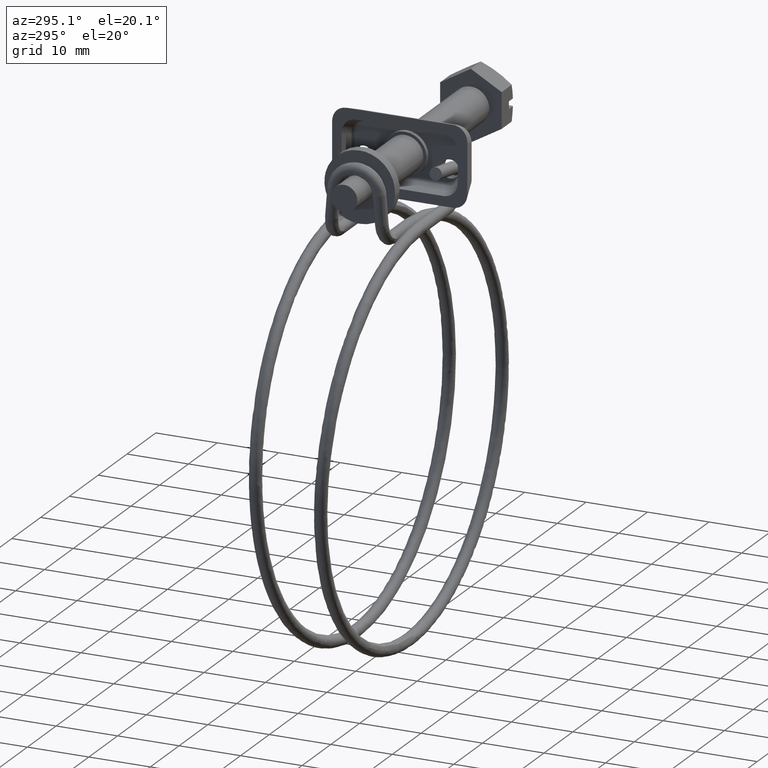
[diagram: clean part render]
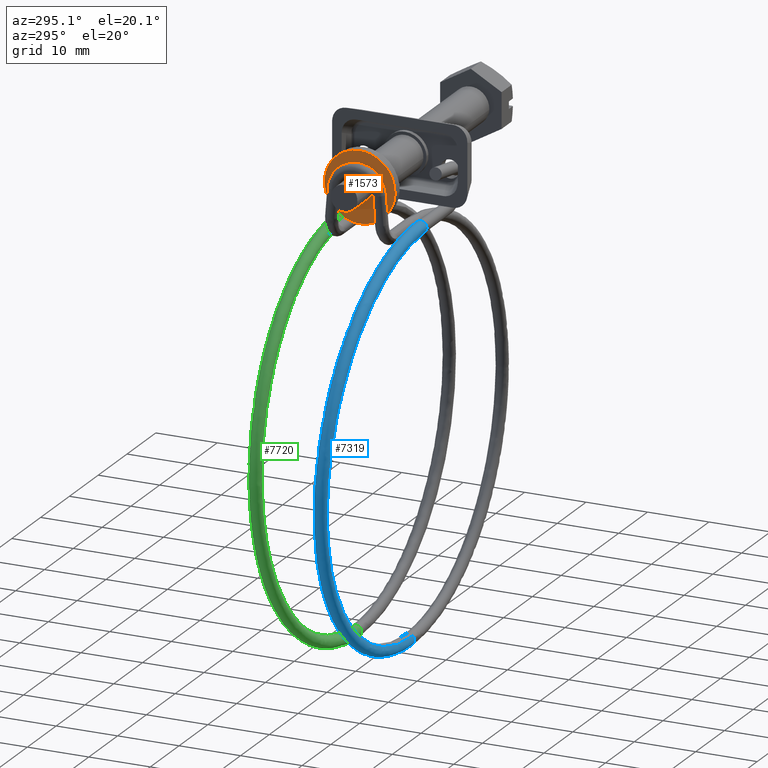
[diagram: same view with three faces highlighted in distinct colors, each labeled with its STEP entity id]
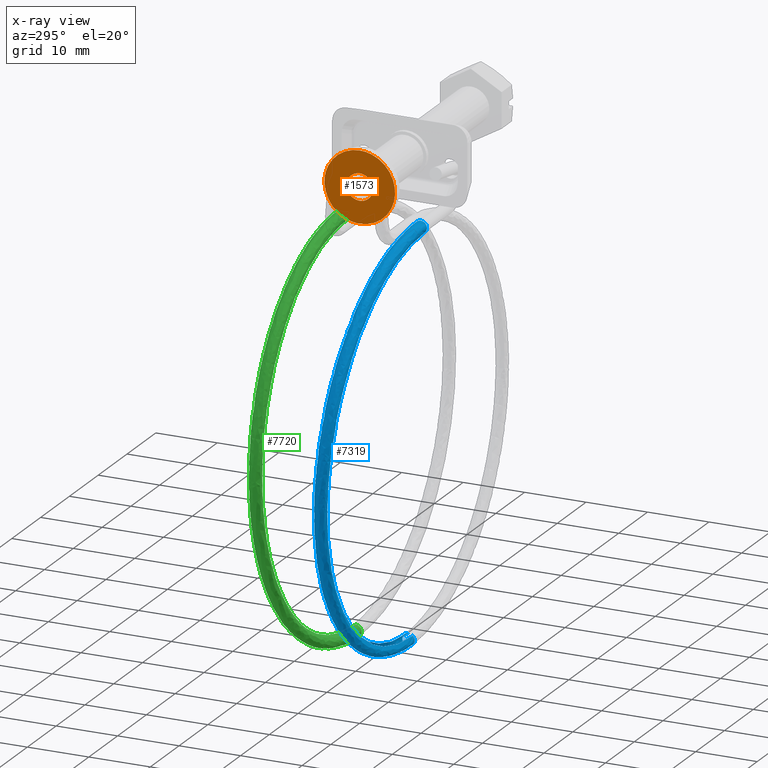
[diagram: x-ray of the same camera — body ghosted, the three highlighted faces saturated]
A machine part, auxiliary view with three faces highlighted in distinct colors.
The next image is the same camera in x-ray (body ghosted, the three faces saturated) — at least one of them is partly hidden behind the body in this view.
Their STEP definitions:

[orange] entity #1573 — the highlighted face is a freeform B-spline surface patch.
#286=CARTESIAN_POINT('',(-38.600000000000001,-5.739275090917776,-0.351029102455544));
#287=VERTEX_POINT('',#286);
#293=CARTESIAN_POINT('',(-38.600000000000001,0.0,-5.750000000000000));
#294=VERTEX_POINT('',#293);
#295=CARTESIAN_POINT('',(-38.600000000000001,0.0,-5.750000000000000));
#296=CARTESIAN_POINT('',(-38.599999999999994,-5.409059884462023,-5.750000000000000));
#297=CARTESIAN_POINT('',(-38.599999999999994,-5.739275090917776,-0.351029102455544));
#305=(BOUNDED_CURVE()B_SPLINE_CURVE(2,(#295,#296,#297),.UNSPECIFIED.,.F.,.U.)B_SPLINE_CURVE_WITH_KNOTS((3,3),(0.500000000000000,0.739332962234144),.UNSPECIFIED.)CURVE()GEOMETRIC_REPRESENTATION_ITEM()RATIONAL_B_SPLINE_CURVE((1.0,0.719603993292332,0.976072041656434))REPRESENTATION_ITEM(''));
#306=EDGE_CURVE('',#294,#287,#305,.T.);
#308=CARTESIAN_POINT('',(-38.599999999999987,5.709804776579831,0.678696849371011));
#309=VERTEX_POINT('',#308);
#310=CARTESIAN_POINT('',(-38.599999999999994,5.709804776579831,0.678696849371011));
#311=CARTESIAN_POINT('',(-38.600000000000009,5.750000000000001,0.340538688094134));
#312=CARTESIAN_POINT('',(-38.600000000000001,5.750000000000000,0.0));
#313=CARTESIAN_POINT('',(-38.600000000000009,5.750000000000000,-5.750000000000000));
#314=CARTESIAN_POINT('',(-38.600000000000001,0.0,-5.750000000000000));
#322=(BOUNDED_CURVE()B_SPLINE_CURVE(2,(#310,#311,#312,#313,#314),.UNSPECIFIED.,.F.,.U.)B_SPLINE_CURVE_WITH_KNOTS((3,2,3),(0.229562473510041,0.250000000000000,0.500000000000000),.UNSPECIFIED.)CURVE()GEOMETRIC_REPRESENTATION_ITEM()RATIONAL_B_SPLINE_CURVE((0.956026754176903,0.976055948327083,1.0,0.707106781186548,1.0))REPRESENTATION_ITEM(''));
#323=EDGE_CURVE('',#309,#294,#322,.T.);
#367=CARTESIAN_POINT('',(-38.600000000000001,0.0,5.750000000000000));
#368=VERTEX_POINT('',#367);
#369=CARTESIAN_POINT('',(-38.600000000000001,0.0,5.750000000000000));
#370=CARTESIAN_POINT('',(-38.599999999999994,5.107003524049855,5.750000000000000));
#371=CARTESIAN_POINT('',(-38.599999999999994,5.709804776579831,0.678696849371011));
#379=(BOUNDED_CURVE()B_SPLINE_CURVE(2,(#369,#370,#371),.UNSPECIFIED.,.F.,.U.)B_SPLINE_CURVE_WITH_KNOTS((3,3),(0.0,0.229562473510041),.UNSPECIFIED.)CURVE()GEOMETRIC_REPRESENTATION_ITEM()RATIONAL_B_SPLINE_CURVE((1.0,0.731050832859465,0.956026754176903))REPRESENTATION_ITEM(''));
#380=EDGE_CURVE('',#368,#309,#379,.T.);
#382=CARTESIAN_POINT('',(-38.600000000000001,-5.739275090917776,-0.351029102455544));
#383=CARTESIAN_POINT('',(-38.600000000000001,-5.750000000000000,-0.175678389097368));
#384=CARTESIAN_POINT('',(-38.600000000000001,-5.750000000000000,0.0));
#385=CARTESIAN_POINT('',(-38.600000000000009,-5.750000000000000,5.750000000000000));
#386=CARTESIAN_POINT('',(-38.600000000000001,0.0,5.750000000000000));
#394=(BOUNDED_CURVE()B_SPLINE_CURVE(2,(#382,#383,#384,#385,#386),.UNSPECIFIED.,.F.,.U.)B_SPLINE_CURVE_WITH_KNOTS((3,2,3),(0.739332962234145,0.750000000000000,1.0),.UNSPECIFIED.)CURVE()GEOMETRIC_REPRESENTATION_ITEM()RATIONAL_B_SPLINE_CURVE((0.976072041656434,0.987502787894216,1.0,0.707106781186548,1.0))REPRESENTATION_ITEM(''));
#395=EDGE_CURVE('',#287,#368,#394,.T.);
#438=CARTESIAN_POINT('',(-38.600000000000009,2.134970481661811,0.253773604679913));
#439=VERTEX_POINT('',#438);
#440=CARTESIAN_POINT('',(-38.600000000000001,0.0,-2.149999999999885));
#441=VERTEX_POINT('',#440);
#442=CARTESIAN_POINT('',(-38.600000000000009,2.134970481661812,0.253773604679913));
#443=CARTESIAN_POINT('',(-38.600000000000001,2.149999999999885,0.127331857421271));
#444=CARTESIAN_POINT('',(-38.600000000000001,2.149999999999885,0.0));
#445=CARTESIAN_POINT('',(-38.600000000000009,2.149999999999885,-2.149999999999885));
#446=CARTESIAN_POINT('',(-38.600000000000001,0.0,-2.149999999999885));
#454=(BOUNDED_CURVE()B_SPLINE_CURVE(2,(#442,#443,#444,#445,#446),.UNSPECIFIED.,.F.,.U.)B_SPLINE_CURVE_WITH_KNOTS((3,2,3),(0.229562473489063,0.250000000000000,0.500000000000000),.UNSPECIFIED.)CURVE()GEOMETRIC_REPRESENTATION_ITEM()RATIONAL_B_SPLINE_CURVE((0.956026754135786,0.976055948302506,1.0,0.707106781186548,1.0))REPRESENTATION_ITEM(''));
#455=EDGE_CURVE('',#439,#441,#454,.T.);
#457=CARTESIAN_POINT('',(-38.600000000000009,-2.145989816594250,-0.131254360206741));
#458=VERTEX_POINT('',#457);
#459=CARTESIAN_POINT('',(-38.600000000000001,0.0,-2.149999999999885));
#460=CARTESIAN_POINT('',(-38.599999999999994,-2.022518043456585,-2.149999999999884));
#461=CARTESIAN_POINT('',(-38.600000000000009,-2.145989816594251,-0.131254360206741));
#469=(BOUNDED_CURVE()B_SPLINE_CURVE(2,(#459,#460,#461),.UNSPECIFIED.,.F.,.U.)B_SPLINE_CURVE_WITH_KNOTS((3,3),(0.500000000000000,0.739332962208711),.UNSPECIFIED.)CURVE()GEOMETRIC_REPRESENTATION_ITEM()RATIONAL_B_SPLINE_CURVE((1.0,0.719603993322129,0.976072041601926))REPRESENTATION_ITEM(''));
#470=EDGE_CURVE('',#441,#458,#469,.T.);
#537=CARTESIAN_POINT('',(-38.600000000000001,0.0,2.149999999999885));
#538=VERTEX_POINT('',#537);
#539=CARTESIAN_POINT('',(-38.600000000000001,0.0,2.149999999999885));
#540=CARTESIAN_POINT('',(-38.600000000000009,1.909575230492883,2.149999999999885));
#541=CARTESIAN_POINT('',(-38.600000000000009,2.134970481661812,0.253773604679913));
#549=(BOUNDED_CURVE()B_SPLINE_CURVE(2,(#539,#540,#541),.UNSPECIFIED.,.F.,.U.)B_SPLINE_CURVE_WITH_KNOTS((3,3),(0.0,0.229562473489063),.UNSPECIFIED.)CURVE()GEOMETRIC_REPRESENTATION_ITEM()RATIONAL_B_SPLINE_CURVE((1.0,0.731050832884042,0.956026754135786))REPRESENTATION_ITEM(''));
#550=EDGE_CURVE('',#538,#439,#549,.T.);
#584=CARTESIAN_POINT('',(-38.600000000000009,-2.145989816594250,-0.131254360206740));
#585=CARTESIAN_POINT('',(-38.600000000000001,-2.149999999999885,-0.065688441299348));
#586=CARTESIAN_POINT('',(-38.600000000000001,-2.149999999999885,0.0));
#587=CARTESIAN_POINT('',(-38.600000000000009,-2.149999999999885,2.149999999999885));
#588=CARTESIAN_POINT('',(-38.600000000000001,0.0,2.149999999999885));
#596=(BOUNDED_CURVE()B_SPLINE_CURVE(2,(#584,#585,#586,#587,#588),.UNSPECIFIED.,.F.,.U.)B_SPLINE_CURVE_WITH_KNOTS((3,2,3),(0.739332962208712,0.750000000000000,1.0),.UNSPECIFIED.)CURVE()GEOMETRIC_REPRESENTATION_ITEM()RATIONAL_B_SPLINE_CURVE((0.976072041601928,0.987502787864420,1.0,0.707106781186548,1.0))REPRESENTATION_ITEM(''));
#597=EDGE_CURVE('',#458,#538,#596,.T.);
#1556=CARTESIAN_POINT('',(-38.600000000000001,-6.324285135775365,-6.324424977710769));
#1557=CARTESIAN_POINT('',(-38.600000000000001,-6.324285135775366,6.324425286164805));
#1558=CARTESIAN_POINT('',(-38.600000000000009,6.324320402353562,-6.324424977710769));
#1559=CARTESIAN_POINT('',(-38.600000000000009,6.324320402353563,6.324425286164805));
#1560=B_SPLINE_SURFACE_WITH_KNOTS('',1,1,((#1556,#1558),(#1557,#1559)),.UNSPECIFIED.,.F.,.F.,.U.,(2,2),(2,2),(0.0,12.648850263875570),(0.0,12.648605538128930),.UNSPECIFIED.);
#1561=ORIENTED_EDGE('',*,*,#380,.T.);
#1562=ORIENTED_EDGE('',*,*,#323,.T.);
#1563=ORIENTED_EDGE('',*,*,#306,.T.);
#1564=ORIENTED_EDGE('',*,*,#395,.T.);
#1565=EDGE_LOOP('',(#1561,#1562,#1563,#1564));
#1566=FACE_OUTER_BOUND('',#1565,.T.);
#1567=ORIENTED_EDGE('',*,*,#470,.F.);
#1568=ORIENTED_EDGE('',*,*,#455,.F.);
#1569=ORIENTED_EDGE('',*,*,#550,.F.);
#1570=ORIENTED_EDGE('',*,*,#597,.F.);
#1571=EDGE_LOOP('',(#1567,#1568,#1569,#1570));
#1572=FACE_BOUND('',#1571,.T.);
#1573=ADVANCED_FACE('',(#1566,#1572),#1560,.T.);

[blue] entity #7319 — the highlighted face is a freeform B-spline surface patch.
#4584=CARTESIAN_POINT('',(-30.849999999999060,-5.885556643314701,-8.754914787495325));
#4585=VERTEX_POINT('',#4584);
#4591=CARTESIAN_POINT('',(-30.849999999999049,-5.319897897954150,-7.710104982547371));
#4592=VERTEX_POINT('',#4591);
#4593=CARTESIAN_POINT('',(-30.849999999999049,-5.319897897954150,-7.710104982547371));
#4594=CARTESIAN_POINT('',(-30.849999999999049,-5.316161039294925,-7.736015925433795));
#4595=CARTESIAN_POINT('',(-30.849999999999049,-5.313464658704180,-7.762081369199514));
#4596=CARTESIAN_POINT('',(-30.849999999999049,-5.295640443664881,-8.049613300035231));
#4597=CARTESIAN_POINT('',(-30.849999999999049,-5.387097077863897,-8.316067935521552));
#4598=CARTESIAN_POINT('',(-30.849999999999060,-5.650558368997631,-8.614502680781836));
#4599=CARTESIAN_POINT('',(-30.849999999999060,-5.762299243391551,-8.696991111472139));
#4600=CARTESIAN_POINT('',(-30.849999999999060,-5.885556643314701,-8.754914787495325));
#4601=B_SPLINE_CURVE_WITH_KNOTS('',3,(#4593,#4594,#4595,#4596,#4597,#4598,#4599,#4600),.UNSPECIFIED.,.F.,.U.,(4,2,2,4),(0.737495190140898,0.750000000000000,0.875000000000000,0.940036109681467),.UNSPECIFIED.);
#4602=EDGE_CURVE('',#4592,#4585,#4601,.T.);
#4681=CARTESIAN_POINT('',(-30.849999999999049,-6.371789038913430,-6.851911646283960));
#4682=VERTEX_POINT('',#4681);
#4683=CARTESIAN_POINT('',(-30.849999999999049,-6.371789038913430,-6.851911646283960));
#4684=CARTESIAN_POINT('',(-30.849999999999049,-6.110481234483552,-6.835734586154826));
#4685=CARTESIAN_POINT('',(-30.849999999999049,-5.844120254282274,-6.927223848680512));
#4686=CARTESIAN_POINT('',(-30.849999999999049,-5.471317048552707,-7.256537912678949));
#4687=CARTESIAN_POINT('',(-30.849999999999049,-5.353499678405099,-7.477079027162440));
#4688=CARTESIAN_POINT('',(-30.849999999999049,-5.319897897954150,-7.710104982547371));
#4689=B_SPLINE_CURVE_WITH_KNOTS('',3,(#4683,#4684,#4685,#4686,#4687,#4688),.UNSPECIFIED.,.F.,.U.,(4,2,4),(0.500000000000000,0.625000000000000,0.737495190140898),.UNSPECIFIED.);
#4690=EDGE_CURVE('',#4682,#4592,#4689,.T.);
#4692=CARTESIAN_POINT('',(-30.849999999999049,-6.995262077857907,-8.578269013316845));
#4693=VERTEX_POINT('',#4692);
#4694=CARTESIAN_POINT('',(-30.849999999999049,-6.995262077857907,-8.578269013316845));
#4695=CARTESIAN_POINT('',(-30.849999999999049,-7.177991980085003,-8.405861968233682));
#4696=CARTESIAN_POINT('',(-30.849999999999049,-7.292562561499312,-8.162634911548283));
#4697=CARTESIAN_POINT('',(-30.849999999999049,-7.324267139852270,-7.650488888061910));
#4698=CARTESIAN_POINT('',(-30.849999999999049,-7.232776168809070,-7.384139759107320));
#4699=CARTESIAN_POINT('',(-30.849999999999049,-6.886119381974051,-6.991730852545230));
#4700=CARTESIAN_POINT('',(-30.849999999999049,-6.633088220685149,-6.868087463340290));
#4701=CARTESIAN_POINT('',(-30.849999999999049,-6.371789038913430,-6.851911646283960));
#4702=B_SPLINE_CURVE_WITH_KNOTS('',3,(#4694,#4695,#4696,#4697,#4698,#4699,#4700,#4701),.UNSPECIFIED.,.F.,.U.,(4,2,2,4),(0.130000178333026,0.250000000000000,0.375000000000000,0.500000000000000),.UNSPECIFIED.);
#4703=EDGE_CURVE('',#4693,#4682,#4702,.T.);
#4705=CARTESIAN_POINT('',(-30.849999999999049,-6.248214899246285,-8.848090353716129));
#4706=VERTEX_POINT('',#4705);
#4716=CARTESIAN_POINT('',(-30.849999999999060,-5.885556643314701,-8.754914787495325));
#4717=CARTESIAN_POINT('',(-30.849999999999049,-5.999282059827779,-8.808136743454099));
#4718=CARTESIAN_POINT('',(-30.849999999999049,-6.122798354506255,-8.840476349903755));
#4719=CARTESIAN_POINT('',(-30.849999999999049,-6.248214899246285,-8.848090353716129));
#4720=B_SPLINE_CURVE_WITH_KNOTS('',3,(#4716,#4717,#4718,#4719),.UNSPECIFIED.,.F.,.U.,(4,4),(0.940036109681467,1.0),.UNSPECIFIED.);
#4721=EDGE_CURVE('',#4585,#4706,#4720,.T.);
#6062=CARTESIAN_POINT('',(-30.849999999948931,-3.302485887033418,-72.780271342071529));
#6063=VERTEX_POINT('',#6062);
#6064=CARTESIAN_POINT('',(-30.850000000000900,-4.300002000000003,-71.850001000000105));
#6065=VERTEX_POINT('',#6064);
#6066=CARTESIAN_POINT('',(-30.849999999948931,-3.302485887033418,-72.780271342071529));
#6067=CARTESIAN_POINT('',(-30.849999999955578,-3.319730377700379,-72.542534340315882));
#6068=CARTESIAN_POINT('',(-30.849999999964488,-3.424196145419588,-72.311556064546693));
#6069=CARTESIAN_POINT('',(-30.849999999983549,-3.777998799462703,-71.957772896960364));
#6070=CARTESIAN_POINT('',(-30.849999999993610,-4.038195655369272,-71.850000495566178));
#6071=CARTESIAN_POINT('',(-30.850000000000900,-4.300002000000003,-71.850001000000105));
#6072=B_SPLINE_CURVE_WITH_KNOTS('',3,(#6066,#6067,#6068,#6069,#6070,#6071),.UNSPECIFIED.,.F.,.U.,(4,2,4),(0.761111541808311,0.875000000000000,1.0),.UNSPECIFIED.);
#6073=EDGE_CURVE('',#6063,#6065,#6072,.T.);
#6075=CARTESIAN_POINT('',(-30.850000000000900,-5.028950365694058,-72.165464663451871));
#6076=VERTEX_POINT('',#6075);
#6086=CARTESIAN_POINT('',(-30.849999999978220,-4.287435984471298,-73.849920191923019));
#6087=VERTEX_POINT('',#6086);
#6088=CARTESIAN_POINT('',(-30.850000000000900,-5.028950365694058,-72.165464663451871));
#6089=CARTESIAN_POINT('',(-30.849999981791431,-5.631830985875569,-72.808333736705848));
#6090=CARTESIAN_POINT('',(-30.850000001509759,-5.168495732696644,-73.861248513621845));
#6091=CARTESIAN_POINT('',(-30.849999999978220,-4.287435984471298,-73.849920191923019));
#6092=B_SPLINE_CURVE_WITH_KNOTS('',3,(#6088,#6089,#6090,#6091),.UNSPECIFIED.,.F.,.U.,(4,4),(0.0,2.643995307830902),.UNSPECIFIED.);
#6093=EDGE_CURVE('',#6076,#6087,#6092,.T.);
#6175=CARTESIAN_POINT('',(-30.849999999978220,-4.287435984471298,-73.849920191923019));
#6176=CARTESIAN_POINT('',(-30.849999999974660,-4.029889019310470,-73.846533327676340));
#6177=CARTESIAN_POINT('',(-30.849999999969590,-3.775038524062545,-73.739265955749175));
#6178=CARTESIAN_POINT('',(-30.849999999959142,-3.407742793961562,-73.371985962488850));
#6179=CARTESIAN_POINT('',(-30.849999999953809,-3.299960689535967,-73.111797701208118));
#6180=CARTESIAN_POINT('',(-30.849999999949581,-3.299953544918448,-72.826725569207625));
#6181=CARTESIAN_POINT('',(-30.849999999949251,-3.300804588167433,-72.803466287239388));
#6182=CARTESIAN_POINT('',(-30.849999999948931,-3.302485887033418,-72.780271342071529));
#6183=B_SPLINE_CURVE_WITH_KNOTS('',3,(#6175,#6176,#6177,#6178,#6179,#6180,#6181,#6182),.UNSPECIFIED.,.F.,.U.,(4,2,2,4),(0.502000184595795,0.625000000000000,0.750000000000000,0.761111541808310),.UNSPECIFIED.);
#6184=EDGE_CURVE('',#6087,#6063,#6183,.T.);
#6979=CARTESIAN_POINT('',(-30.850000000000950,-5.028949982883884,-72.165464254695294));
#6980=CARTESIAN_POINT('',(-30.850000000000950,-5.200678314366810,-72.348831902300873));
#6981=CARTESIAN_POINT('',(-30.850000000000950,-5.300002000000000,-72.598673587712980));
#6982=CARTESIAN_POINT('',(-30.850000000000950,-5.300002000000000,-73.111800387799292));
#6983=CARTESIAN_POINT('',(-30.850000000000950,-5.192228903609820,-73.371987658763388));
#6984=CARTESIAN_POINT('',(-30.850000000000950,-4.821988658763289,-73.742227903609901));
#6985=CARTESIAN_POINT('',(-30.850000000000950,-4.561801387799160,-73.850001000000091));
#6986=CARTESIAN_POINT('',(-30.850000000000950,-4.038202612200855,-73.850001000000091));
#6987=CARTESIAN_POINT('',(-30.850000000000950,-3.778015341236725,-73.742227903609901));
#6988=CARTESIAN_POINT('',(-30.850000000000950,-3.407775096390195,-73.371987658763388));
#6989=CARTESIAN_POINT('',(-30.850000000000950,-3.300002000000000,-73.111800387799292));
#6990=CARTESIAN_POINT('',(-30.850000000000950,-3.300002000000000,-72.588201612201004));
#6991=CARTESIAN_POINT('',(-30.850000000000950,-3.407775096390195,-72.328014341236795));
#6992=CARTESIAN_POINT('',(-30.850000000000950,-3.778015341236725,-71.957774096390295));
#6993=CARTESIAN_POINT('',(-30.850000000000950,-4.038202612200855,-71.850001000000091));
#6994=CARTESIAN_POINT('',(-30.850000000000950,-4.300002000000007,-71.850001000000091));
#6995=CARTESIAN_POINT('',(-35.012756799667727,-5.028950979001549,-72.165464277380394));
#6996=CARTESIAN_POINT('',(-35.036070567482433,-5.200679315946018,-72.348831930335507));
#6997=CARTESIAN_POINT('',(-35.068381211018611,-5.300003009217170,-72.598673618819774));
#6998=CARTESIAN_POINT('',(-35.135567001595852,-5.300003025199440,-73.111800418906398));
#6999=CARTESIAN_POINT('',(-35.170070745980752,-5.192229937068230,-73.371987686536997));
#7000=CARTESIAN_POINT('',(-35.220046875601653,-4.821989704289480,-73.742227919846002));
#7001=CARTESIAN_POINT('',(-35.235211516181351,-4.561802437057400,-73.850001008148709));
#7002=CARTESIAN_POINT('',(-35.237331507331113,-4.038203662218415,-73.850000991819996));
#7003=CARTESIAN_POINT('',(-35.224273803335187,-3.778016388272610,-73.742227887336412));
#7004=CARTESIAN_POINT('',(-35.177295793955253,-3.407776132430365,-73.371987630936999));
#7005=CARTESIAN_POINT('',(-35.143664771281252,-3.300003028093285,-73.111800356633196));
#7006=CARTESIAN_POINT('',(-35.075107842120843,-3.300003011785865,-72.588201581034710));
#7007=CARTESIAN_POINT('',(-35.040604097724852,-3.407776099916090,-72.328014313410094));
#7008=CARTESIAN_POINT('',(-34.990627968115049,-3.778016332695525,-71.957774080116593));
#7009=CARTESIAN_POINT('',(-34.975463327535401,-4.038203599928401,-71.850000991819996));
#7010=CARTESIAN_POINT('',(-34.974403331954953,-4.300002987347845,-71.850000999984303));
#7011=CARTESIAN_POINT('',(-39.172359100171597,-5.054542960719395,-71.337830630405421));
#7012=CARTESIAN_POINT('',(-39.218968485475941,-5.226414640125143,-71.516562648585392));
#7013=CARTESIAN_POINT('',(-39.283564617923773,-5.325936992215176,-71.759979796734299));
#7014=CARTESIAN_POINT('',(-39.417883893317700,-5.326350093331960,-72.259747605267890));
#7015=CARTESIAN_POINT('',(-39.486864520099303,-5.218789147980890,-72.513074270404289));
#7016=CARTESIAN_POINT('',(-39.586777871743202,-4.848856188273610,-72.873377433456497));
#7017=CARTESIAN_POINT('',(-39.617095346913914,-4.588762159199360,-72.978135244881301));
#7018=CARTESIAN_POINT('',(-39.621333678767762,-4.065176418659640,-72.977713713131308));
#7019=CARTESIAN_POINT('',(-39.595228436532608,-3.804908860597280,-72.872536965671401));
#7020=CARTESIAN_POINT('',(-39.501308991271898,-3.434379764970755,-72.511637666699897));
#7021=CARTESIAN_POINT('',(-39.434073128496301,-3.326399883589190,-72.258137472617904));
#7022=CARTESIAN_POINT('',(-39.297012643400450,-3.325978351836450,-71.748170321053010));
#7023=CARTESIAN_POINT('',(-39.228032016633662,-3.433539297185675,-71.494843655946084));
#7024=CARTESIAN_POINT('',(-39.128118664974949,-3.803472256894800,-71.134540492864403));
#7025=CARTESIAN_POINT('',(-39.097801189804251,-4.063566285970900,-71.029782681469086));
#7026=CARTESIAN_POINT('',(-39.095682023884699,-4.325359156240760,-71.029993447344097));
#7027=CARTESIAN_POINT('',(-46.862355533040549,-5.153049032536382,-68.152310846134739));
#7028=CARTESIAN_POINT('',(-46.952023742713543,-5.325472279902486,-68.313206089221580));
#7029=CARTESIAN_POINT('',(-47.076295271117772,-5.425759052221330,-68.531903179845258));
#7030=CARTESIAN_POINT('',(-47.334701788883002,-5.427761666014560,-68.980268836376794));
#7031=CARTESIAN_POINT('',(-47.467408308532001,-5.321017026294940,-69.207197557760296));
#7032=CARTESIAN_POINT('',(-47.659623917201102,-4.952266425101130,-69.529265245956196));
#7033=CARTESIAN_POINT('',(-47.717949374644100,-4.692531168142480,-69.622420973707804));
#7034=CARTESIAN_POINT('',(-47.726103175162400,-4.168995583339511,-69.620377490243499));
#7035=CARTESIAN_POINT('',(-47.675881308477898,-3.908419100046105,-69.525190862464001));
#7036=CARTESIAN_POINT('',(-47.495196915092897,-3.536778576824015,-69.200233252239798));
#7037=CARTESIAN_POINT('',(-47.365847012643897,-3.428003037071935,-68.972463304479092));
#7038=CARTESIAN_POINT('',(-47.102166892475203,-3.425959553610380,-68.514947328426601));
#7039=CARTESIAN_POINT('',(-46.969460372811596,-3.532704193331835,-68.288018607013498));
#7040=CARTESIAN_POINT('',(-46.777244764157203,-3.901454794523810,-67.965950918847199));
#7041=CARTESIAN_POINT('',(-46.718919306714199,-4.161190051480616,-67.872795191065990));
#7042=CARTESIAN_POINT('',(-46.714842406447637,-4.422957843882098,-67.873816932798150));
#7043=CARTESIAN_POINT('',(-50.389049424372061,-5.225923347028152,-65.795678749138787));
#7044=CARTESIAN_POINT('',(-50.498459813346450,-5.398754582806590,-65.943380336892233));
#7045=CARTESIAN_POINT('',(-50.650092106570611,-5.499606787889471,-66.143792288085663));
#7046=CARTESIAN_POINT('',(-50.965391784423403,-5.502785145740090,-66.554136369961896));
#7047=CARTESIAN_POINT('',(-51.127316194292199,-5.396644317810940,-66.761538839194998));
#7048=CARTESIAN_POINT('',(-51.361851762540098,-5.028768293474720,-67.055324190732094));
#7049=CARTESIAN_POINT('',(-51.433018690158200,-4.769298416083630,-67.139897992041682));
#7050=CARTESIAN_POINT('',(-51.442967706546099,-4.245799930898855,-67.136654769735998));
#7051=CARTESIAN_POINT('',(-51.381688530898003,-3.984994939198836,-67.048857717331600));
#7052=CARTESIAN_POINT('',(-51.161222996526398,-3.612532305901375,-66.750485756818605));
#7053=CARTESIAN_POINT('',(-51.003394227602307,-3.503168226895965,-66.541748173337297));
#7054=CARTESIAN_POINT('',(-50.681659862505498,-3.499925004595725,-66.123029722443306));
#7055=CARTESIAN_POINT('',(-50.519735452607208,-3.606065832526720,-65.915627253210090));
#7056=CARTESIAN_POINT('',(-50.285199884359201,-3.973941856861090,-65.621841901672994));
#7057=CARTESIAN_POINT('',(-50.214032956741093,-4.233411734252180,-65.537268100392893));
#7058=CARTESIAN_POINT('',(-50.209058448547147,-4.495160976844570,-65.538889711545806));
#7059=CARTESIAN_POINT('',(-56.274419805712249,-5.407927215686103,-59.909981413441223));
#7060=CARTESIAN_POINT('',(-56.416767249039992,-5.581777023095746,-60.024744117083351));
#7061=CARTESIAN_POINT('',(-56.614047136838742,-5.684040870652534,-60.179505937842578));
#7062=CARTESIAN_POINT('',(-57.024265064366098,-5.690154555858830,-60.494926496939300));
#7063=CARTESIAN_POINT('',(-57.234935421795598,-5.585521186331830,-60.653580310506797));
#7064=CARTESIAN_POINT('',(-57.540075900907702,-5.219828604341651,-60.876756828888901));
#7065=CARTESIAN_POINT('',(-57.632667018531301,-4.961021265625410,-60.939905249982687));
#7066=CARTESIAN_POINT('',(-57.645611100485297,-4.437615402223585,-60.933666795699800));
#7067=CARTESIAN_POINT('',(-57.565884357363700,-4.176239923291790,-60.864318335690292));
#7068=CARTESIAN_POINT('',(-57.279049574535101,-3.801724834637105,-60.632319310658502));
#7069=CARTESIAN_POINT('',(-57.073707815518397,-3.690891426175970,-60.471097356814496));
#7070=CARTESIAN_POINT('',(-56.655118093492703,-3.684652971887530,-60.149239643450500));
#7071=CARTESIAN_POINT('',(-56.444447736092698,-3.789286341412680,-59.990585829883003));
#7072=CARTESIAN_POINT('',(-56.139307256980601,-4.154978923404705,-59.767409311500892));
#7073=CARTESIAN_POINT('',(-56.046716139357002,-4.413786262120945,-59.704260890377597));
#7074=CARTESIAN_POINT('',(-56.040244098380001,-4.675489193821858,-59.707380117519037));
#7075=CARTESIAN_POINT('',(-58.630784576559932,-5.516985238431851,-56.383229379831420));
#7076=CARTESIAN_POINT('',(-58.786314316290792,-5.691445217708234,-56.478260157148391));
#7077=CARTESIAN_POINT('',(-59.001863601151221,-5.794554704883113,-56.605675422710981));
#7078=CARTESIAN_POINT('',(-59.450070369159498,-5.802426787938050,-56.864232368854999));
#7079=CARTESIAN_POINT('',(-59.680250167928101,-5.698696456231311,-56.993683466374513));
#7080=CARTESIAN_POINT('',(-60.013648634261692,-5.334311857941519,-57.174562003778703));
#7081=CARTESIAN_POINT('',(-60.114814289898902,-5.075901410755110,-57.224875623839800));
#7082=CARTESIAN_POINT('',(-60.128957077784392,-4.552551032121980,-57.216842886028601));
#7083=CARTESIAN_POINT('',(-60.041847121161297,-4.290833804760110,-57.158545992390813));
#7084=CARTESIAN_POINT('',(-59.728449577302200,-3.915089199714015,-56.966307448257893));
#7085=CARTESIAN_POINT('',(-59.504091839630497,-3.803375594456315,-56.833549570559192));
#7086=CARTESIAN_POINT('',(-59.046737994724097,-3.795342856643305,-56.569715952030187));
#7087=CARTESIAN_POINT('',(-58.816558195955501,-3.899073188348205,-56.440264854525402));
#7088=CARTESIAN_POINT('',(-58.483159729592401,-4.263457786637990,-56.259386317135892));
#7089=CARTESIAN_POINT('',(-58.381994073984700,-4.521868233822560,-56.209072697045400));
#7090=CARTESIAN_POINT('',(-58.374922680041948,-4.783543423139125,-56.213089065951003));
#7091=CARTESIAN_POINT('',(-61.815830431644933,-5.754776227690024,-48.693470902446663));
#7092=CARTESIAN_POINT('',(-61.989175821229530,-5.930566298020954,-48.745488784277029));
#7093=CARTESIAN_POINT('',(-62.229415886016717,-6.035519163676019,-48.813292306928673));
#7094=CARTESIAN_POINT('',(-62.728963927097013,-6.047224313088740,-48.947894368930001));
#7095=CARTESIAN_POINT('',(-62.985510404754407,-5.945462480093190,-49.013687547105299));
#7096=CARTESIAN_POINT('',(-63.357099061327901,-5.583929107032740,-49.102362282057499));
#7097=CARTESIAN_POINT('',(-63.469853059402602,-5.326383829003780,-49.124697794699003));
#7098=CARTESIAN_POINT('',(-63.485615878062809,-4.803154399558910,-49.112753764686097));
#7099=CARTESIAN_POINT('',(-63.388527633797302,-4.540692207439430,-49.078547771391612));
#7100=CARTESIAN_POINT('',(-63.039230969117213,-4.162267425146014,-48.972981627178797));
#7101=CARTESIAN_POINT('',(-62.789173459215696,-4.048635111471735,-48.902271534916594));
#7102=CARTESIAN_POINT('',(-62.279430560154204,-4.036691081460599,-48.764922492072898));
#7103=CARTESIAN_POINT('',(-62.022884082496802,-4.138452914458000,-48.699129313882793));
#7104=CARTESIAN_POINT('',(-61.651295425952902,-4.499986287518445,-48.610454578915792));
#7105=CARTESIAN_POINT('',(-61.538541427848600,-4.757531565549260,-48.588119066303797));
#7106=CARTESIAN_POINT('',(-61.530660018518553,-5.019146280271695,-48.594091081310303));
#7107=CARTESIAN_POINT('',(-62.643259765242853,-5.883415734083478,-44.533486800811943));
#7108=CARTESIAN_POINT('',(-62.821231973083542,-6.059925206832085,-44.562240425020171));
#7109=CARTESIAN_POINT('',(-63.067884363721483,-6.165875095161819,-44.597801920491833));
#7110=CARTESIAN_POINT('',(-63.580766004288812,-6.179653423844461,-44.665360870754000));
#7111=CARTESIAN_POINT('',(-63.844160047522998,-6.078956286923440,-44.696723578258997));
#7112=CARTESIAN_POINT('',(-64.225666897931987,-5.718965047624681,-44.735528315210587));
#7113=CARTESIAN_POINT('',(-64.341430449742290,-5.461887711076810,-44.742731391551693));
#7114=CARTESIAN_POINT('',(-64.357613998905208,-4.938723699058770,-44.728671872491503));
#7115=CARTESIAN_POINT('',(-64.257934340669493,-4.675858580062150,-44.707495853242293));
#7116=CARTESIAN_POINT('',(-63.899314484974013,-4.295984178222810,-44.648807953739052));
#7117=CARTESIAN_POINT('',(-63.642582608594097,-4.181314098401085,-44.611657463792653));
#7118=CARTESIAN_POINT('',(-63.119233995770287,-4.167254579337165,-44.542719759458294));
#7119=CARTESIAN_POINT('',(-62.855839952536101,-4.267951716258179,-44.511357051938553));
#7120=CARTESIAN_POINT('',(-62.474333102127098,-4.627942955556940,-44.472552314986949));
#7121=CARTESIAN_POINT('',(-62.358569550316801,-4.885020292101110,-44.465349238645800));
#7122=CARTESIAN_POINT('',(-62.350477775735349,-5.146602298110135,-44.472378998183302));
#7123=CARTESIAN_POINT('',(-62.643259765183799,-6.140795919326696,-36.210246851521028));
#7124=CARTESIAN_POINT('',(-62.821231973024439,-6.318744747093374,-36.192454168437003));
#7125=CARTESIAN_POINT('',(-63.067884363662472,-6.426689443263063,-36.163506951553472));
#7126=CARTESIAN_POINT('',(-63.580766004229687,-6.444615716010840,-36.096928405105047));
#7127=CARTESIAN_POINT('',(-63.844160047464001,-6.346048785498470,-36.059403839609601));
#7128=CARTESIAN_POINT('',(-64.225666897872998,-5.989142993115680,-35.998430440942457));
#7129=CARTESIAN_POINT('',(-64.341430449683202,-5.733001897410509,-35.975357071786597));
#7130=CARTESIAN_POINT('',(-64.357613998846190,-5.209968770286820,-35.957064956734158));
#7131=CARTESIAN_POINT('',(-64.257934340610404,-4.946297489364711,-35.961958850636350));
#7132=CARTESIAN_POINT('',(-63.899314484915010,-4.563522739795440,-35.997063292128097));
#7133=CARTESIAN_POINT('',(-63.642582608535001,-4.446776334022050,-36.027057672399259));
#7134=CARTESIAN_POINT('',(-63.119233995711312,-4.428484218973305,-36.094994964678747));
#7135=CARTESIAN_POINT('',(-62.855839952476998,-4.527051149485670,-36.132519530189001));
#7136=CARTESIAN_POINT('',(-62.474333102068002,-4.883956941868460,-36.193492928856152));
#7137=CARTESIAN_POINT('',(-62.358569550257798,-5.140098037577331,-36.216566298012012));
#7138=CARTESIAN_POINT('',(-62.350477775676303,-5.401614601139175,-36.225712355530852));
#7139=CARTESIAN_POINT('',(-61.815830431657560,-6.269435425715186,-32.050262749872310));
#7140=CARTESIAN_POINT('',(-61.989175821231342,-6.448103655897096,-32.009205809166133));
#7141=CARTESIAN_POINT('',(-62.229415886045743,-6.557045374741517,-31.948016565102641));
#7142=CARTESIAN_POINT('',(-62.728963927126003,-6.577044826762830,-31.814394906915151));
#7143=CARTESIAN_POINT('',(-62.985510404783398,-6.479542592324999,-31.742439870764109));
#7144=CARTESIAN_POINT('',(-63.357099061327403,-6.124178933703890,-31.631596474066850));
#7145=CARTESIAN_POINT('',(-63.469853059461109,-5.868505779477980,-31.593390668625300));
#7146=CARTESIAN_POINT('',(-63.485615878121308,-5.345538069782960,-31.572983064525602));
#7147=CARTESIAN_POINT('',(-63.388527633796791,-5.081463861981870,-31.590906932473050));
#7148=CARTESIAN_POINT('',(-63.039230969146210,-4.697239492866670,-31.672889618674400));
#7149=CARTESIAN_POINT('',(-62.789173459215199,-4.579455320945830,-31.736443601246549));
#7150=CARTESIAN_POINT('',(-62.279430560153713,-4.559047716844300,-31.872792232050148));
#7151=CARTESIAN_POINT('',(-62.022884082496297,-4.656549951280290,-31.944747268245450));
#7152=CARTESIAN_POINT('',(-61.651295425981900,-5.011913609903240,-32.055590664928012));
#7153=CARTESIAN_POINT('',(-61.538541427877597,-5.267586764125460,-32.093796470369547));
#7154=CARTESIAN_POINT('',(-61.530660018547550,-5.529070618972971,-32.104000272419370));
#7155=CARTESIAN_POINT('',(-58.630784576546212,-6.507226414983225,-24.360504272517041));
#7156=CARTESIAN_POINT('',(-58.786314316287971,-6.687224736224572,-24.276434436324291));
#7157=CARTESIAN_POINT('',(-59.001863601121130,-6.798009833549045,-24.155633449349860));
#7158=CARTESIAN_POINT('',(-59.450070369129392,-6.821842351920901,-23.898056907019651));
#7159=CARTESIAN_POINT('',(-59.680250167898002,-6.726308616194260,-23.762443951494902));
#7160=CARTESIAN_POINT('',(-60.013648634261102,-6.373796182802490,-23.559396752404648));
#7161=CARTESIAN_POINT('',(-60.114814289839302,-6.118988197737720,-23.493212839514101));
#7162=CARTESIAN_POINT('',(-60.128957077724799,-5.596141437227270,-23.468893943212599));
#7163=CARTESIAN_POINT('',(-60.041847121160799,-5.331322264672271,-23.510908711503451));
#7164=CARTESIAN_POINT('',(-59.728449577272102,-4.944417718309740,-23.679563797624802));
#7165=CARTESIAN_POINT('',(-59.504091839630000,-4.824714837972330,-23.805165565663000));
#7166=CARTESIAN_POINT('',(-59.046737994723600,-4.800395941672671,-24.067998772122401));
#7167=CARTESIAN_POINT('',(-58.816558195954997,-4.895929677401161,-24.203611727602901));
#7168=CARTESIAN_POINT('',(-58.483159729562303,-5.248442110791080,-24.406658926707902));
#7169=CARTESIAN_POINT('',(-58.381994073954687,-5.503250095859550,-24.472842839598449));
#7170=CARTESIAN_POINT('',(-58.374922680011949,-5.764673476114775,-24.485002287749200));
#7171=CARTESIAN_POINT('',(-56.274419805724442,-6.616284437729544,-20.833752238834101));
#7172=CARTESIAN_POINT('',(-56.416767249039111,-6.796892930834914,-20.729950476318340));
#7173=CARTESIAN_POINT('',(-56.614047136838522,-6.908523667774187,-20.581802934174569));
#7174=CARTESIAN_POINT('',(-57.024265064394797,-6.934114584000111,-20.267362778891549));
#7175=CARTESIAN_POINT('',(-57.234935421824296,-6.839483886093730,-20.102547107333649));
#7176=CARTESIAN_POINT('',(-57.540075900936401,-6.488279436402349,-19.857201927206450));
#7177=CARTESIAN_POINT('',(-57.632667018530498,-6.233868342871101,-19.778183213297901));
#7178=CARTESIAN_POINT('',(-57.645611100514103,-5.711077067125641,-19.752070033497649));
#7179=CARTESIAN_POINT('',(-57.565884357362897,-5.445916146135030,-19.805136368160149));
#7180=CARTESIAN_POINT('',(-57.279049574563800,-5.057782083384790,-20.013551935180502));
#7181=CARTESIAN_POINT('',(-57.073707815517601,-4.937199006247120,-20.167617779349200));
#7182=CARTESIAN_POINT('',(-56.655118093521402,-4.911085826426590,-20.488475080658400));
#7183=CARTESIAN_POINT('',(-56.444447736091902,-5.005716524331130,-20.653290752245852));
#7184=CARTESIAN_POINT('',(-56.139307256979812,-5.356920974022509,-20.898635932314001));
#7185=CARTESIAN_POINT('',(-56.046716139385701,-5.611332067557450,-20.977654646222501));
#7186=CARTESIAN_POINT('',(-56.040244098379162,-5.872727705430176,-20.990711236152151));
#7187=CARTESIAN_POINT('',(-50.389049424358170,-6.798288306376457,-14.948054903254350));
#7188=CARTESIAN_POINT('',(-50.498459813345633,-6.979915371113575,-14.811314256622969));
#7189=CARTESIAN_POINT('',(-50.650092106569232,-7.092957750533484,-14.617516583990460));
#7190=CARTESIAN_POINT('',(-50.965391784393098,-7.121483994111470,-14.208152905928060));
#7191=CARTESIAN_POINT('',(-51.127316194261887,-7.028360754607240,-13.994588578704439));
#7192=CARTESIAN_POINT('',(-51.361851762509808,-6.679339747261889,-13.678634565481341));
#7193=CARTESIAN_POINT('',(-51.433018690157503,-6.425591192394419,-13.578190471356960));
#7194=CARTESIAN_POINT('',(-51.442967706515802,-5.902892538442990,-13.549082059520540));
#7195=CARTESIAN_POINT('',(-51.381688530897200,-5.637161130227991,-13.620596986577899));
#7196=CARTESIAN_POINT('',(-51.161222996496100,-5.246974612113140,-13.895385489079461));
#7197=CARTESIAN_POINT('',(-51.003394227601497,-5.124922205527129,-14.096966962885441));
#7198=CARTESIAN_POINT('',(-50.681659862475101,-5.095813793711010,-14.514685001724640));
#7199=CARTESIAN_POINT('',(-50.519735452606312,-5.188937033217090,-14.728249328918720));
#7200=CARTESIAN_POINT('',(-50.285199884358398,-5.537958040562431,-15.044203342200900));
#7201=CARTESIAN_POINT('',(-50.214032956710803,-5.791706595426210,-15.144647436325251));
#7202=CARTESIAN_POINT('',(-50.209058448546351,-6.053055922401925,-15.159201642213951));
#7203=CARTESIAN_POINT('',(-46.862355533112947,-6.871162620878655,-12.591422806199850));
#7204=CARTESIAN_POINT('',(-46.952023742786992,-7.053197674030015,-12.441488504239400));
#7205=CARTESIAN_POINT('',(-47.076295271204579,-7.166805486207231,-12.229405692231049));
#7206=CARTESIAN_POINT('',(-47.334701788955400,-7.196507473846221,-11.782020439513319));
#7207=CARTESIAN_POINT('',(-47.467408308604298,-7.103988046130601,-11.548929860050780));
#7208=CARTESIAN_POINT('',(-47.659623917273507,-6.755841615639169,-11.204693510198400));
#7209=CARTESIAN_POINT('',(-47.717949374731198,-6.502358440346640,-11.095667489632000));
#7210=CARTESIAN_POINT('',(-47.726103175249499,-5.979696886006020,-11.065359338983660));
#7211=CARTESIAN_POINT('',(-47.675881308579797,-5.713736969384410,-11.144263841416160));
#7212=CARTESIAN_POINT('',(-47.495196915165302,-5.322728341194190,-11.445637993569740));
#7213=CARTESIAN_POINT('',(-47.365847012701501,-5.200087395355761,-11.666251831714300));
#7214=CARTESIAN_POINT('',(-47.102166892547601,-5.169779244703729,-12.122767395711961));
#7215=CARTESIAN_POINT('',(-46.969460372898702,-5.262298672411960,-12.355857975115461));
#7216=CARTESIAN_POINT('',(-46.777244764244287,-5.610445102903390,-12.700094324997380));
#7217=CARTESIAN_POINT('',(-46.718919306786603,-5.863928278195930,-12.809120345593261));
#7218=CARTESIAN_POINT('',(-46.714842406527453,-6.125259055368084,-12.824274420917440));
#7219=CARTESIAN_POINT('',(-39.172359100096251,-6.969668692685811,-9.405903021928861));
#7220=CARTESIAN_POINT('',(-39.218968485399543,-7.152255313793171,-9.238131944870945));
#7221=CARTESIAN_POINT('',(-39.283564617834060,-7.266627546205920,-9.001329075283010));
#7222=CARTESIAN_POINT('',(-39.417883893242497,-7.297919046517750,-8.502541670563190));
#7223=CARTESIAN_POINT('',(-39.486864520024064,-7.206215924437281,-8.243053147524909));
#7224=CARTESIAN_POINT('',(-39.586777871667948,-6.859251852466691,-7.860581322698121));
#7225=CARTESIAN_POINT('',(-39.617095346823902,-6.606127449286070,-7.739953218458560));
#7226=CARTESIAN_POINT('',(-39.621333678677757,-6.083516050685891,-7.708023116095860));
#7227=CARTESIAN_POINT('',(-39.595228436427803,-5.817247208825850,-7.796917738208780));
#7228=CARTESIAN_POINT('',(-39.501308991196652,-5.425127153047451,-8.134233579227759));
#7229=CARTESIAN_POINT('',(-39.434073128435813,-5.301690548829281,-8.380577663575560));
#7230=CARTESIAN_POINT('',(-39.297012643325203,-5.269760446470280,-8.889544403085580));
#7231=CARTESIAN_POINT('',(-39.228032016543651,-5.361463568558130,-9.149032926182910));
#7232=CARTESIAN_POINT('',(-39.128118664884951,-5.708427640528710,-9.531504750980179));
#7233=CARTESIAN_POINT('',(-39.097801189728962,-5.961552043709340,-9.652132855190201));
#7234=CARTESIAN_POINT('',(-39.095682023802048,-6.222857743007580,-9.668097906371552));
#7235=CARTESIAN_POINT('',(-35.012756769911718,-6.995394576659407,-8.578301066998982));
#7236=CARTESIAN_POINT('',(-35.036070537483042,-7.178124916336768,-8.405894627567284));
#7237=CARTESIAN_POINT('',(-35.068381180693812,-7.292696324147450,-8.162667591983670));
#7238=CARTESIAN_POINT('',(-35.135566970565598,-7.324401971347900,-7.650521970680340));
#7239=CARTESIAN_POINT('',(-35.170070714595447,-7.232911530717600,-7.384173241322450));
#7240=CARTESIAN_POINT('',(-35.220046843706399,-6.886255504384850,-6.991764915411530));
#7241=CARTESIAN_POINT('',(-35.235211484146262,-6.633224572064530,-6.868121702835900));
#7242=CARTESIAN_POINT('',(-35.237331475289047,-6.110626240467180,-6.835770093451250));
#7243=CARTESIAN_POINT('',(-35.224273771448203,-5.844276914501620,-6.927260912341470));
#7244=CARTESIAN_POINT('',(-35.177295762546301,-5.451867294039150,-7.273917153150950));
#7245=CARTESIAN_POINT('',(-35.143664740213701,-5.328223388798740,-7.526947924740400));
#7246=CARTESIAN_POINT('',(-35.075107811773549,-5.295870689666370,-8.049545496996780));
#7247=CARTESIAN_POINT('',(-35.040604067740958,-5.387361117954510,-8.315894229316331));
#7248=CARTESIAN_POINT('',(-34.990627938633303,-5.734017110506500,-8.708302563334991));
#7249=CARTESIAN_POINT('',(-34.975463298190199,-5.987048028849260,-8.831945779293831));
#7250=CARTESIAN_POINT('',(-34.974403302618583,-6.248347193602115,-8.848121584237486));
#7251=CARTESIAN_POINT('',(-30.849999999999049,-6.995261670523277,-8.578269397639700));
#7252=CARTESIAN_POINT('',(-30.849999999999049,-7.177991639555637,-8.405862691158356));
#7253=CARTESIAN_POINT('',(-30.849999999999049,-7.292562538421853,-8.162635284334472));
#7254=CARTESIAN_POINT('',(-30.849999999999049,-7.324267139852270,-7.650488888061910));
#7255=CARTESIAN_POINT('',(-30.849999999999049,-7.232776168809070,-7.384139759107320));
#7256=CARTESIAN_POINT('',(-30.849999999999049,-6.886119381974051,-6.991730852545230));
#7257=CARTESIAN_POINT('',(-30.849999999999049,-6.633088220685149,-6.868087463340290));
#7258=CARTESIAN_POINT('',(-30.849999999999049,-6.110489857141710,-6.835735829227630));
#7259=CARTESIAN_POINT('',(-30.849999999999049,-5.844140728187130,-6.927226800270830));
#7260=CARTESIAN_POINT('',(-30.849999999999049,-5.451731821625041,-7.273883587105850));
#7261=CARTESIAN_POINT('',(-30.849999999999049,-5.328088432420110,-7.526914748394759));
#7262=CARTESIAN_POINT('',(-30.849999999999049,-5.295736798307450,-8.049513111938190));
#7263=CARTESIAN_POINT('',(-30.849999999999049,-5.387227769350640,-8.315862240892770));
#7264=CARTESIAN_POINT('',(-30.849999999999049,-5.733884556185671,-8.708271147454859));
#7265=CARTESIAN_POINT('',(-30.849999999999049,-5.986915717474570,-8.831914536659800));
#7266=CARTESIAN_POINT('',(-30.849999999999049,-6.248214899246285,-8.848090353716129));
#7267=B_SPLINE_SURFACE_WITH_KNOTS('',3,3,((#6979,#6995,#7011,#7027,#7043,#7059,#7075,#7091,#7107,#7123,#7139,#7155,#7171,#7187,#7203,#7219,#7235,#7251),(#6980,#6996,#7012,#7028,#7044,#7060,#7076,#7092,#7108,#7124,#7140,#7156,#7172,#7188,#7204,#7220,#7236,#7252),(#6981,#6997,#7013,#7029,#7045,#7061,#7077,#7093,#7109,#7125,#7141,#7157,#7173,#7189,#7205,#7221,#7237,#7253),(#6982,#6998,#7014,#7030,#7046,#7062,#7078,#7094,#7110,#7126,#7142,#7158,#7174,#7190,#7206,#7222,#7238,#7254),(#6983,#6999,#7015,#7031,#7047,#7063,#7079,#7095,#7111,#7127,#7143,#7159,#7175,#7191,#7207,#7223,#7239,#7255),(#6984,#7000,#7016,#7032,#7048,#7064,#7080,#7096,#7112,#7128,#7144,#7160,#7176,#7192,#7208,#7224,#7240,#7256),(#6985,#7001,#7017,#7033,#7049,#7065,#7081,#7097,#7113,#7129,#7145,#7161,#7177,#7193,#7209,#7225,#7241,#7257),(#6986,#7002,#7018,#7034,#7050,#7066,#7082,#7098,#7114,#7130,#7146,#7162,#7178,#7194,#7210,#7226,#7242,#7258),(#6987,#7003,#7019,#7035,#7051,#7067,#7083,#7099,#7115,#7131,#7147,#7163,#7179,#7195,#7211,#7227,#7243,#7259),(#6988,#7004,#7020,#7036,#7052,#7068,#7084,#7100,#7116,#7132,#7148,#7164,#7180,#7196,#7212,#7228,#7244,#7260),(#6989,#7005,#7021,#7037,#7053,#7069,#7085,#7101,#7117,#7133,#7149,#7165,#7181,#7197,#7213,#7229,#7245,#7261),(#6990,#7006,#7022,#7038,#7054,#7070,#7086,#7102,#7118,#7134,#7150,#7166,#7182,#7198,#7214,#7230,#7246,#7262),(#6991,#7007,#7023,#7039,#7055,#7071,#7087,#7103,#7119,#7135,#7151,#7167,#7183,#7199,#7215,#7231,#7247,#7263),(#6992,#7008,#7024,#7040,#7056,#7072,#7088,#7104,#7120,#7136,#7152,#7168,#7184,#7200,#7216,#7232,#7248,#7264),(#6993,#7009,#7025,#7041,#7057,#7073,#7089,#7105,#7121,#7137,#7153,#7169,#7185,#7201,#7217,#7233,#7249,#7265),(#6994,#7010,#7026,#7042,#7058,#7074,#7090,#7106,#7122,#7138,#7154,#7170,#7186,#7202,#7218,#7234,#7250,#7266)),.UNSPECIFIED.,.F.,.F.,.U.,(4,2,2,2,2,2,2,4),(4,2,2,2,2,2,2,2,4),(0.0,0.753982236861560,1.539380400259018,2.324778563656476,3.110176727053934,3.895574890451392,4.680973053848850,5.466371217246308),(0.0,13.149541710052191,26.299083420104900,39.448625130157609,52.598166840210247,65.747708550262971,78.897250260315673,92.046791970367750,105.196333680420490),.UNSPECIFIED.);
#7268=ORIENTED_EDGE('',*,*,#4703,.T.);
#7269=ORIENTED_EDGE('',*,*,#4690,.T.);
#7270=ORIENTED_EDGE('',*,*,#4602,.T.);
#7271=ORIENTED_EDGE('',*,*,#4721,.T.);
#7272=CARTESIAN_POINT('',(-30.850000000000950,-4.300002000000007,-71.850001000000091));
#7273=CARTESIAN_POINT('',(-34.974403331954953,-4.300002987347845,-71.850000999984303));
#7274=CARTESIAN_POINT('',(-39.095682023884699,-4.325359156240760,-71.029993447344097));
#7275=CARTESIAN_POINT('',(-46.714842406447637,-4.422957843882098,-67.873816932798150));
#7276=CARTESIAN_POINT('',(-50.209058448547147,-4.495160976844570,-65.538889711545806));
#7277=CARTESIAN_POINT('',(-56.040244098380001,-4.675489193821858,-59.707380117519037));
#7278=CARTESIAN_POINT('',(-58.374922680041948,-4.783543423139125,-56.213089065951003));
#7279=CARTESIAN_POINT('',(-61.530660018518553,-5.019146280271695,-48.594091081310303));
#7280=CARTESIAN_POINT('',(-62.350477775735349,-5.146602298110135,-44.472378998183302));
#7281=CARTESIAN_POINT('',(-62.350477775676303,-5.401614601139175,-36.225712355530852));
#7282=CARTESIAN_POINT('',(-61.530660018547550,-5.529070618972971,-32.104000272419370));
#7283=CARTESIAN_POINT('',(-58.374922680011949,-5.764673476114775,-24.485002287749200));
#7284=CARTESIAN_POINT('',(-56.040244098379162,-5.872727705430176,-20.990711236152151));
#7285=CARTESIAN_POINT('',(-50.209058448546351,-6.053055922401925,-15.159201642213951));
#7286=CARTESIAN_POINT('',(-46.714842406527453,-6.125259055368084,-12.824274420917440));
#7287=CARTESIAN_POINT('',(-39.095682023802048,-6.222857743007580,-9.668097906371552));
#7288=CARTESIAN_POINT('',(-34.974403302618583,-6.248347193602115,-8.848121584237486));
#7289=CARTESIAN_POINT('',(-30.849999999999049,-6.248214899246285,-8.848090353716129));
#7290=B_SPLINE_CURVE_WITH_KNOTS('',3,(#7272,#7273,#7274,#7275,#7276,#7277,#7278,#7279,#7280,#7281,#7282,#7283,#7284,#7285,#7286,#7287,#7288,#7289),.UNSPECIFIED.,.F.,.U.,(4,2,2,2,2,2,2,2,4),(0.746103607010464,0.771706671016815,0.797309735023167,0.822912799029519,0.848515863035871,0.874118927042223,0.899721991048575,0.925325055054926,0.950928119061278),.UNSPECIFIED.);
#7291=EDGE_CURVE('',#6065,#4706,#7290,.T.);
#7292=ORIENTED_EDGE('',*,*,#7291,.F.);
#7293=ORIENTED_EDGE('',*,*,#6073,.F.);
#7294=ORIENTED_EDGE('',*,*,#6184,.F.);
#7295=ORIENTED_EDGE('',*,*,#6093,.F.);
#7296=CARTESIAN_POINT('',(-30.850000000000900,-5.028950365694058,-72.165464663451871));
#7297=CARTESIAN_POINT('',(-35.012756799667727,-5.028950979001548,-72.165464277380394));
#7298=CARTESIAN_POINT('',(-39.172359100171597,-5.054542960719396,-71.337830630405421));
#7299=CARTESIAN_POINT('',(-46.862355533040557,-5.153049032536382,-68.152310846134739));
#7300=CARTESIAN_POINT('',(-50.389049424372061,-5.225923347028153,-65.795678749138787));
#7301=CARTESIAN_POINT('',(-56.274419805712242,-5.407927215686103,-59.909981413441223));
#7302=CARTESIAN_POINT('',(-58.630784576559932,-5.516985238431852,-56.383229379831420));
#7303=CARTESIAN_POINT('',(-61.815830431644919,-5.754776227690024,-48.693470902446641));
#7304=CARTESIAN_POINT('',(-62.643259765242853,-5.883415734083478,-44.533486800811943));
#7305=CARTESIAN_POINT('',(-62.643259765183792,-6.140795919326696,-36.210246851521028));
#7306=CARTESIAN_POINT('',(-61.815830431657560,-6.269435425715186,-32.050262749872310));
#7307=CARTESIAN_POINT('',(-58.630784576546212,-6.507226414983225,-24.360504272517041));
#7308=CARTESIAN_POINT('',(-56.274419805724442,-6.616284437729544,-20.833752238834101));
#7309=CARTESIAN_POINT('',(-50.389049424358177,-6.798288306376457,-14.948054903254350));
#7310=CARTESIAN_POINT('',(-46.862355533112961,-6.871162620878655,-12.591422806199850));
#7311=CARTESIAN_POINT('',(-39.172359100096259,-6.969668692685811,-9.405903021928863));
#7312=CARTESIAN_POINT('',(-35.012756769911718,-6.995394576659407,-8.578301066998980));
#7313=CARTESIAN_POINT('',(-30.849999999999049,-6.995262077857907,-8.578269013316845));
#7314=B_SPLINE_CURVE_WITH_KNOTS('',3,(#7296,#7297,#7298,#7299,#7300,#7301,#7302,#7303,#7304,#7305,#7306,#7307,#7308,#7309,#7310,#7311,#7312,#7313),.UNSPECIFIED.,.F.,.U.,(4,2,2,2,2,2,2,2,4),(0.746103607010464,0.771706671016815,0.797309735023167,0.822912799029519,0.848515863035871,0.874118927042223,0.899721991048575,0.925325055054926,0.950928119061278),.UNSPECIFIED.);
#7315=EDGE_CURVE('',#6076,#4693,#7314,.T.);
#7316=ORIENTED_EDGE('',*,*,#7315,.T.);
#7317=EDGE_LOOP('',(#7268,#7269,#7270,#7271,#7292,#7293,#7294,#7295,#7316));
#7318=FACE_OUTER_BOUND('',#7317,.T.);
#7319=ADVANCED_FACE('',(#7318),#7267,.F.);

[green] entity #7720 — the highlighted face is a freeform B-spline surface patch.
#5672=CARTESIAN_POINT('',(-30.849999999390061,5.319897834208924,-7.710104983372004));
#5673=VERTEX_POINT('',#5672);
#5674=CARTESIAN_POINT('',(-30.850000000000950,5.885556579688370,-8.754914787495306));
#5675=VERTEX_POINT('',#5674);
#5676=CARTESIAN_POINT('',(-30.849999999390061,5.319897834208924,-7.710104983372004));
#5677=CARTESIAN_POINT('',(-30.849999999400861,5.316160975611426,-7.736015925986807));
#5678=CARTESIAN_POINT('',(-30.849999999411988,5.313464595060702,-7.762081369476871));
#5679=CARTESIAN_POINT('',(-30.849999999537609,5.295640380038640,-8.049613300035196));
#5680=CARTESIAN_POINT('',(-30.849999999680460,5.387097014237694,-8.316067935521543));
#5681=CARTESIAN_POINT('',(-30.849999999879909,5.650558305371408,-8.614502680781826));
#5682=CARTESIAN_POINT('',(-30.849999999944568,5.762299179765278,-8.696991111472114));
#5683=CARTESIAN_POINT('',(-30.850000000000950,5.885556579688370,-8.754914787495306));
#5684=B_SPLINE_CURVE_WITH_KNOTS('',3,(#5676,#5677,#5678,#5679,#5680,#5681,#5682,#5683),.UNSPECIFIED.,.F.,.U.,(4,2,2,4),(0.737495190273566,0.750000000000000,0.875000000000000,0.940036109681441),.UNSPECIFIED.);
#5685=EDGE_CURVE('',#5673,#5675,#5684,.T.);
#5741=CARTESIAN_POINT('',(-30.850000000000950,6.248214835620130,-8.848090353716110));
#5742=VERTEX_POINT('',#5741);
#5743=CARTESIAN_POINT('',(-30.850000000000950,5.885556579688370,-8.754914787495306));
#5744=CARTESIAN_POINT('',(-30.850000000000950,5.999281996201501,-8.808136743454098));
#5745=CARTESIAN_POINT('',(-30.850000000000950,6.122798290880039,-8.840476349903755));
#5746=CARTESIAN_POINT('',(-30.850000000000950,6.248214835620130,-8.848090353716110));
#5747=B_SPLINE_CURVE_WITH_KNOTS('',3,(#5743,#5744,#5745,#5746),.UNSPECIFIED.,.F.,.U.,(4,4),(0.940036109681441,1.0),.UNSPECIFIED.);
#5748=EDGE_CURVE('',#5675,#5742,#5747,.T.);
#5750=CARTESIAN_POINT('',(-30.850000000000950,6.995262014231693,-8.578269013316785));
#5751=VERTEX_POINT('',#5750);
#5761=CARTESIAN_POINT('',(-30.850000000000939,6.371788975286907,-6.851911646283909));
#5762=VERTEX_POINT('',#5761);
#5763=CARTESIAN_POINT('',(-30.850000000000950,6.995262014231693,-8.578269013316785));
#5764=CARTESIAN_POINT('',(-30.850000000000950,7.177991916458737,-8.405861968233523));
#5765=CARTESIAN_POINT('',(-30.850000000000961,7.292562497873036,-8.162634911548077));
#5766=CARTESIAN_POINT('',(-30.850000000000950,7.324267076225896,-7.650488888061669));
#5767=CARTESIAN_POINT('',(-30.850000000000939,7.232776105182650,-7.384139759107103));
#5768=CARTESIAN_POINT('',(-30.850000000000950,6.886119318347556,-6.991730852545079));
#5769=CARTESIAN_POINT('',(-30.850000000000939,6.633088157058631,-6.868087463340193));
#5770=CARTESIAN_POINT('',(-30.850000000000939,6.371788975286910,-6.851911646283909));
#5771=B_SPLINE_CURVE_WITH_KNOTS('',3,(#5763,#5764,#5765,#5766,#5767,#5768,#5769,#5770),.UNSPECIFIED.,.F.,.U.,(4,2,2,4),(0.130000178333013,0.249999999999999,0.374999999999999,0.500000000000000),.UNSPECIFIED.);
#5772=EDGE_CURVE('',#5751,#5762,#5771,.T.);
#5774=CARTESIAN_POINT('',(-30.850000000000939,6.371788975286907,-6.851911646283909));
#5775=CARTESIAN_POINT('',(-30.849999999914441,6.110481170857034,-6.835734586154827));
#5776=CARTESIAN_POINT('',(-30.849999999795539,5.844120190655777,-6.927223848680566));
#5777=CARTESIAN_POINT('',(-30.849999999571889,5.471316984718027,-7.256537912863058));
#5778=CARTESIAN_POINT('',(-30.849999999468061,5.353499614500824,-7.477079027682795));
#5779=CARTESIAN_POINT('',(-30.849999999390061,5.319897834208924,-7.710104983372004));
#5780=B_SPLINE_CURVE_WITH_KNOTS('',3,(#5774,#5775,#5776,#5777,#5778,#5779),.UNSPECIFIED.,.F.,.U.,(4,2,4),(0.500000000000000,0.625000000000000,0.737495190273566),.UNSPECIFIED.);
#5781=EDGE_CURVE('',#5762,#5673,#5780,.T.);
#6613=CARTESIAN_POINT('',(-30.850033537480851,4.300000256851567,-73.850000999963328));
#6614=VERTEX_POINT('',#6613);
#6630=CARTESIAN_POINT('',(-30.849999999999049,5.028950365697011,-72.165464663451871));
#6631=VERTEX_POINT('',#6630);
#6632=CARTESIAN_POINT('',(-30.849999999999049,5.028950365697011,-72.165464663451871));
#6633=CARTESIAN_POINT('',(-30.850001828756991,5.200678514529183,-72.348832644882606));
#6634=CARTESIAN_POINT('',(-30.850005297603900,5.300001724653508,-72.598673961206970));
#6635=CARTESIAN_POINT('',(-30.850013902201098,5.300001277419107,-73.111800387784058));
#6636=CARTESIAN_POINT('',(-30.850019047318479,5.192227913605185,-73.371987658742512));
#6637=CARTESIAN_POINT('',(-30.850027942482370,4.821987206421699,-73.742227903579277));
#6638=CARTESIAN_POINT('',(-30.850031637753951,4.561799743391335,-73.850000999965417));
#6639=CARTESIAN_POINT('',(-30.850033537480851,4.300000256851567,-73.850000999963328));
#6640=B_SPLINE_CURVE_WITH_KNOTS('',3,(#6632,#6633,#6634,#6635,#6636,#6637,#6638,#6639),.UNSPECIFIED.,.F.,.U.,(4,2,2,4),(0.130000178333027,0.250000000000000,0.375000000000000,0.500000000000000),.UNSPECIFIED.);
#6641=EDGE_CURVE('',#6631,#6614,#6640,.T.);
#6643=CARTESIAN_POINT('',(-30.849999999999049,4.300002000002957,-71.850001000000091));
#6644=VERTEX_POINT('',#6643);
#6654=CARTESIAN_POINT('',(-30.849999999880751,3.364945210152508,-73.203131635898430));
#6655=VERTEX_POINT('',#6654);
#6656=CARTESIAN_POINT('',(-30.849999999880751,3.364945210152508,-73.203131635898430));
#6657=CARTESIAN_POINT('',(-30.849999999885672,3.322352722698042,-73.090572399671728));
#6658=CARTESIAN_POINT('',(-30.849999999891839,3.299591888975445,-72.970530271636477));
#6659=CARTESIAN_POINT('',(-30.849999999914459,3.299678426660484,-72.588324114420388));
#6660=CARTESIAN_POINT('',(-30.849999999934269,3.407527296422437,-72.328108156277750));
#6661=CARTESIAN_POINT('',(-30.849999999971331,3.777909289249788,-71.957814246805754));
#6662=CARTESIAN_POINT('',(-30.849999999988349,4.038161661962622,-71.850016503426275));
#6663=CARTESIAN_POINT('',(-30.849999999999049,4.300002000002957,-71.850001000000091));
#6664=B_SPLINE_CURVE_WITH_KNOTS('',3,(#6656,#6657,#6658,#6659,#6660,#6661,#6662,#6663),.UNSPECIFIED.,.F.,.U.,(4,2,2,4),(0.692525645318762,0.750000000000000,0.875000000000000,1.0),.UNSPECIFIED.);
#6665=EDGE_CURVE('',#6655,#6644,#6664,.T.);
#6720=CARTESIAN_POINT('',(-30.850033537480851,4.300000256851567,-73.850000999963328));
#6721=CARTESIAN_POINT('',(-30.850027186855151,4.038115505463880,-73.850033442892013));
#6722=CARTESIAN_POINT('',(-30.850019065404201,3.777819067902744,-73.742301835902424));
#6723=CARTESIAN_POINT('',(-30.850007360675789,3.492538767500650,-73.457238662655072));
#6724=CARTESIAN_POINT('',(-30.850003435048311,3.415054688589183,-73.335349654646933));
#6725=CARTESIAN_POINT('',(-30.849999999880751,3.364945210152508,-73.203131635898430));
#6726=B_SPLINE_CURVE_WITH_KNOTS('',3,(#6720,#6721,#6722,#6723,#6724,#6725),.UNSPECIFIED.,.F.,.U.,(4,2,4),(0.500000000000000,0.625000000000000,0.692525645318762),.UNSPECIFIED.);
#6727=EDGE_CURVE('',#6614,#6655,#6726,.T.);
#7380=CARTESIAN_POINT('',(-30.850000000000950,6.995261606897119,-8.578269397639700));
#7381=CARTESIAN_POINT('',(-30.850000000000950,7.177991575929475,-8.405862691158356));
#7382=CARTESIAN_POINT('',(-30.850000000000950,7.292562474795703,-8.162635284334472));
#7383=CARTESIAN_POINT('',(-30.850000000000950,7.324267076226120,-7.650488888061910));
#7384=CARTESIAN_POINT('',(-30.850000000000950,7.232776105182921,-7.384139759107320));
#7385=CARTESIAN_POINT('',(-30.850000000000950,6.886119318347890,-6.991730852545230));
#7386=CARTESIAN_POINT('',(-30.850000000000950,6.633088157058990,-6.868087463340290));
#7387=CARTESIAN_POINT('',(-30.850000000000950,6.110489793515560,-6.835735829227630));
#7388=CARTESIAN_POINT('',(-30.850000000000950,5.844140664560970,-6.927226800270830));
#7389=CARTESIAN_POINT('',(-30.850000000000950,5.451731757998890,-7.273883587105850));
#7390=CARTESIAN_POINT('',(-30.850000000000950,5.328088368793961,-7.526914748394759));
#7391=CARTESIAN_POINT('',(-30.850000000000950,5.295736734681291,-8.049513111938190));
#7392=CARTESIAN_POINT('',(-30.850000000000950,5.387227705724491,-8.315862240892770));
#7393=CARTESIAN_POINT('',(-30.850000000000950,5.733884492559509,-8.708271147454859));
#7394=CARTESIAN_POINT('',(-30.850000000000950,5.986915653848410,-8.831914536659800));
#7395=CARTESIAN_POINT('',(-30.850000000000950,6.248214835620130,-8.848090353716129));
#7396=CARTESIAN_POINT('',(-35.012756769872908,6.995394513036921,-8.578301066998982));
#7397=CARTESIAN_POINT('',(-35.036070537444232,7.178124852714564,-8.405894627567284));
#7398=CARTESIAN_POINT('',(-35.068381180654967,7.292696260528567,-8.162667591983670));
#7399=CARTESIAN_POINT('',(-35.135566970526803,7.324401907725449,-7.650521970680340));
#7400=CARTESIAN_POINT('',(-35.170070714556601,7.232911467095160,-7.384173241322440));
#7401=CARTESIAN_POINT('',(-35.220046843678602,6.886255440762430,-6.991764915411530));
#7402=CARTESIAN_POINT('',(-35.235211484107353,6.633224508449610,-6.868121702835900));
#7403=CARTESIAN_POINT('',(-35.237331475239053,6.110626176848521,-6.835770093451250));
#7404=CARTESIAN_POINT('',(-35.224273771409308,5.844276850882940,-6.927260912341470));
#7405=CARTESIAN_POINT('',(-35.177295762507498,5.451867230420430,-7.273917153150950));
#7406=CARTESIAN_POINT('',(-35.143664740185962,5.328223325176290,-7.526947924740400));
#7407=CARTESIAN_POINT('',(-35.075107811734753,5.295870626043890,-8.049545496996780));
#7408=CARTESIAN_POINT('',(-35.040604067702112,5.387361054332020,-8.315894229316331));
#7409=CARTESIAN_POINT('',(-34.990627938594550,5.734017046883980,-8.708302563334991));
#7410=CARTESIAN_POINT('',(-34.975463298151453,5.987047965230361,-8.831945779293831));
#7411=CARTESIAN_POINT('',(-34.974403302579802,6.248347129985035,-8.848121584237486));
#7412=CARTESIAN_POINT('',(-39.172359100156953,6.969668692687636,-9.405903021929550));
#7413=CARTESIAN_POINT('',(-39.218968485460252,7.152255313794992,-9.238131944871611));
#7414=CARTESIAN_POINT('',(-39.283564617894719,7.266627546207750,-9.001329075283101));
#7415=CARTESIAN_POINT('',(-39.417883893303149,7.297919046519570,-8.502541670534351));
#7416=CARTESIAN_POINT('',(-39.486864520084701,7.206215924435410,-8.243053147496070));
#7417=CARTESIAN_POINT('',(-39.586777871713849,6.859251852464831,-7.860581322669270));
#7418=CARTESIAN_POINT('',(-39.617095346884597,6.606127449284200,-7.739953218429730));
#7419=CARTESIAN_POINT('',(-39.621333678753203,6.083516050687720,-7.708023116067030));
#7420=CARTESIAN_POINT('',(-39.595228436488512,5.817247208827671,-7.796917738179940));
#7421=CARTESIAN_POINT('',(-39.501308991257297,5.425127153045581,-8.134233579198920));
#7422=CARTESIAN_POINT('',(-39.434073128481756,5.301690548832950,-8.380577663546719));
#7423=CARTESIAN_POINT('',(-39.297012643385848,5.269760446472100,-8.889544403086260));
#7424=CARTESIAN_POINT('',(-39.228032016604303,5.361463568554420,-9.149032926183590));
#7425=CARTESIAN_POINT('',(-39.128118664945603,5.708427640530530,-9.531504750980858));
#7426=CARTESIAN_POINT('',(-39.097801189789649,5.961552043707470,-9.652132855161359));
#7427=CARTESIAN_POINT('',(-39.095682023862750,6.222857743005711,-9.668097906342709));
#7428=CARTESIAN_POINT('',(-46.862355533055563,6.871162620876794,-12.591422806200541));
#7429=CARTESIAN_POINT('',(-46.952023742729587,7.053197674028154,-12.441488504240100));
#7430=CARTESIAN_POINT('',(-47.076295271147181,7.166805486205361,-12.229405692232319));
#7431=CARTESIAN_POINT('',(-47.334701788898002,7.196507473844351,-11.782020439543521));
#7432=CARTESIAN_POINT('',(-47.467408308546901,7.103988046132430,-11.548929860080980));
#7433=CARTESIAN_POINT('',(-47.659623917230803,6.755841615641000,-11.204693510228600));
#7434=CARTESIAN_POINT('',(-47.717949374673800,6.502358440348460,-11.095667489662221));
#7435=CARTESIAN_POINT('',(-47.726103175177400,5.979696886004160,-11.065359339013879));
#7436=CARTESIAN_POINT('',(-47.675881308522399,5.713736969382540,-11.144263841446360));
#7437=CARTESIAN_POINT('',(-47.495196915107897,5.322728341196011,-11.445637993599959));
#7438=CARTESIAN_POINT('',(-47.365847012658897,5.200087395352051,-11.666251831744500));
#7439=CARTESIAN_POINT('',(-47.102166892490203,5.169779244701861,-12.122767395712639));
#7440=CARTESIAN_POINT('',(-46.969460372841297,5.262298672415630,-12.355857975116161));
#7441=CARTESIAN_POINT('',(-46.777244764186896,5.610445102901529,-12.700094324998060));
#7442=CARTESIAN_POINT('',(-46.718919306729212,5.863928278197760,-12.809120345623480));
#7443=CARTESIAN_POINT('',(-46.714842406470012,6.125259055369910,-12.824274420947649));
#7444=CARTESIAN_POINT('',(-50.389049424399630,6.798288306376652,-14.948054903267350));
#7445=CARTESIAN_POINT('',(-50.498459813371497,6.979915371114866,-14.811314256630199));
#7446=CARTESIAN_POINT('',(-50.650092106568003,7.092957750527986,-14.617516584011110));
#7447=CARTESIAN_POINT('',(-50.965391784419801,7.121483994106001,-14.208152905962180));
#7448=CARTESIAN_POINT('',(-51.127316194288099,7.028360754605480,-13.994588578752801));
#7449=CARTESIAN_POINT('',(-51.361851762564903,6.679339747256460,-13.678634565484700));
#7450=CARTESIAN_POINT('',(-51.433018690182799,6.425591192396380,-13.578190471374841));
#7451=CARTESIAN_POINT('',(-51.442967706541097,5.902892538441260,-13.549082059553159));
#7452=CARTESIAN_POINT('',(-51.381688530922602,5.637161130222560,-13.620596986595960));
#7453=CARTESIAN_POINT('',(-51.161222996522199,5.246974612111379,-13.895385489098221));
#7454=CARTESIAN_POINT('',(-51.003394227628199,5.124922205523509,-14.096966962948960));
#7455=CARTESIAN_POINT('',(-50.681659862502812,5.095813793711050,-14.514685001774399));
#7456=CARTESIAN_POINT('',(-50.519735452664001,5.188937033213420,-14.728249328954259));
#7457=CARTESIAN_POINT('',(-50.285199884387303,5.537958040558739,-15.044203342237150));
#7458=CARTESIAN_POINT('',(-50.214032956769401,5.791706595420670,-15.144647436347000));
#7459=CARTESIAN_POINT('',(-50.209058448575497,6.053055922398230,-15.159201642257820));
#7460=CARTESIAN_POINT('',(-56.274419805685078,6.616284437729290,-20.833752238823202));
#7461=CARTESIAN_POINT('',(-56.416767249015336,6.796892930833561,-20.729950476313210));
#7462=CARTESIAN_POINT('',(-56.614047136841862,6.908523667779617,-20.581802934156041));
#7463=CARTESIAN_POINT('',(-57.024265064370198,6.934114584005521,-20.267362778859500));
#7464=CARTESIAN_POINT('',(-57.234935421800202,6.839483886095430,-20.102547107287350));
#7465=CARTESIAN_POINT('',(-57.540075900883501,6.488279436407719,-19.857201927205150));
#7466=CARTESIAN_POINT('',(-57.632667018507298,6.233868342869071,-19.778183213282102));
#7467=CARTESIAN_POINT('',(-57.645611100490903,5.711077067127310,-19.752070033467149));
#7468=CARTESIAN_POINT('',(-57.565884357339598,5.445916146140400,-19.805136368144201));
#7469=CARTESIAN_POINT('',(-57.279049574539798,5.057782083386490,-20.013551935163850));
#7470=CARTESIAN_POINT('',(-57.073707815493101,4.937199006250670,-20.167617779287749));
#7471=CARTESIAN_POINT('',(-56.655118093495886,4.911085826426480,-20.488475080610701));
#7472=CARTESIAN_POINT('',(-56.444447736036402,5.005716524334730,-20.653290752212399));
#7473=CARTESIAN_POINT('',(-56.139307256953003,5.356920974026130,-20.898635932279849));
#7474=CARTESIAN_POINT('',(-56.046716139329199,5.611332067562930,-20.977654646202900));
#7475=CARTESIAN_POINT('',(-56.040244098352147,5.872727705433809,-20.990711236110378));
#7476=CARTESIAN_POINT('',(-58.630784576598593,6.507226414977228,-24.360504272521140));
#7477=CARTESIAN_POINT('',(-58.786314316340231,6.687224736216956,-24.276434436330831));
#7478=CARTESIAN_POINT('',(-59.001863601172630,6.798009833541520,-24.155633449349189));
#7479=CARTESIAN_POINT('',(-59.450070369151597,6.821842351917010,-23.898056907018098));
#7480=CARTESIAN_POINT('',(-59.680250167949602,6.726308616186699,-23.762443951507699));
#7481=CARTESIAN_POINT('',(-60.013648634282902,6.373796182794940,-23.559396752409398));
#7482=CARTESIAN_POINT('',(-60.114814289890496,6.118988197733870,-23.493212839518701));
#7483=CARTESIAN_POINT('',(-60.128957077776001,5.596141437219730,-23.468893943217150));
#7484=CARTESIAN_POINT('',(-60.041847121182499,5.331322264668410,-23.510908711500750));
#7485=CARTESIAN_POINT('',(-59.728449577323708,4.944417718304020,-23.679563797622698));
#7486=CARTESIAN_POINT('',(-59.504091839652197,4.824714837970291,-23.805165565654001));
#7487=CARTESIAN_POINT('',(-59.046737994775697,4.800395941666910,-24.067998772114251));
#7488=CARTESIAN_POINT('',(-58.816558196007300,4.895929677395380,-24.203611727624700));
#7489=CARTESIAN_POINT('',(-58.483159729614897,5.248442110790831,-24.406658926715600));
#7490=CARTESIAN_POINT('',(-58.381994074007302,5.503250095853749,-24.472842839613701));
#7491=CARTESIAN_POINT('',(-58.374922680064550,5.764673476109894,-24.485002287764448));
#7492=CARTESIAN_POINT('',(-61.815830431606422,6.269435425721092,-32.050262749871330));
#7493=CARTESIAN_POINT('',(-61.989175821180282,6.448103655904622,-32.009205809162758));
#7494=CARTESIAN_POINT('',(-62.229415885995429,6.557045374748962,-31.948016565106450));
#7495=CARTESIAN_POINT('',(-62.728963927104999,6.577044826766630,-31.814394906919802));
#7496=CARTESIAN_POINT('',(-62.985510404733112,6.479542592332470,-31.742439870754449));
#7497=CARTESIAN_POINT('',(-63.357099061306812,6.124178933711340,-31.631596474065201));
#7498=CARTESIAN_POINT('',(-63.469853059411108,5.868505779481740,-31.593390668623851));
#7499=CARTESIAN_POINT('',(-63.485615878071307,5.345538069790410,-31.572983064524148));
#7500=CARTESIAN_POINT('',(-63.388527633776299,5.081463861985630,-31.590906932478848));
#7501=CARTESIAN_POINT('',(-63.039230969095897,4.697239492872290,-31.672889618679601));
#7502=CARTESIAN_POINT('',(-62.789173459194302,4.579455320947780,-31.736443601258699));
#7503=CARTESIAN_POINT('',(-62.279430560102902,4.559047716849970,-31.872792232061400));
#7504=CARTESIAN_POINT('',(-62.022884082445302,4.656549951285969,-31.944747268226749));
#7505=CARTESIAN_POINT('',(-61.651295425930599,5.011913609903409,-32.055590664923400));
#7506=CARTESIAN_POINT('',(-61.538541427826303,5.267586764131170,-32.093796470357397));
#7507=CARTESIAN_POINT('',(-61.530660018496199,5.529070618977755,-32.104000272407227));
#7508=CARTESIAN_POINT('',(-62.643259765213287,6.140795919325749,-36.210246851532787));
#7509=CARTESIAN_POINT('',(-62.821231973053941,6.318744747093254,-36.192454168454958));
#7510=CARTESIAN_POINT('',(-63.067884363691967,6.426689443262955,-36.163506951571001));
#7511=CARTESIAN_POINT('',(-63.580766004259203,6.444615716010759,-36.096928405121702));
#7512=CARTESIAN_POINT('',(-63.844160047493489,6.346048785498410,-36.059403839625752));
#7513=CARTESIAN_POINT('',(-64.225666897902499,5.989142993117480,-35.998430440972697));
#7514=CARTESIAN_POINT('',(-64.341430449712703,5.733001897408630,-35.975357071801852));
#7515=CARTESIAN_POINT('',(-64.357613998875692,5.209968770283091,-35.957064956749349));
#7516=CARTESIAN_POINT('',(-64.257934340639892,4.946297489364681,-35.961958850651797));
#7517=CARTESIAN_POINT('',(-63.899314484944497,4.563522739797230,-35.997063292129397));
#7518=CARTESIAN_POINT('',(-63.642582608564503,4.446776334021974,-36.027057672415751));
#7519=CARTESIAN_POINT('',(-63.119233995740807,4.428484218969510,-36.094994964696212));
#7520=CARTESIAN_POINT('',(-62.855839952506500,4.527051149483710,-36.132519530206899));
#7521=CARTESIAN_POINT('',(-62.474333102097503,4.883956941866479,-36.193492928874747));
#7522=CARTESIAN_POINT('',(-62.358569550287307,5.140098037573489,-36.216566298016048));
#7523=CARTESIAN_POINT('',(-62.350477775705812,5.401614601137180,-36.225712355549682));
#7524=CARTESIAN_POINT('',(-62.643259765213287,5.883415734084294,-44.533486800804333));
#7525=CARTESIAN_POINT('',(-62.821231973053941,6.059925206832073,-44.562240425006372));
#7526=CARTESIAN_POINT('',(-63.067884363691967,6.165875095161788,-44.597801920478503));
#7527=CARTESIAN_POINT('',(-63.580766004259203,6.179653423844400,-44.665360870741551));
#7528=CARTESIAN_POINT('',(-63.844160047493489,6.078956286923369,-44.696723578247052));
#7529=CARTESIAN_POINT('',(-64.225666897902499,5.718965047622740,-44.735528315184553));
#7530=CARTESIAN_POINT('',(-64.341430449712703,5.461887711078560,-44.742731391540651));
#7531=CARTESIAN_POINT('',(-64.357613998875692,4.938723699062360,-44.728671872480447));
#7532=CARTESIAN_POINT('',(-64.257934340639892,4.675858580062060,-44.707495853231052));
#7533=CARTESIAN_POINT('',(-63.899314484944497,4.295984178220896,-44.648807953741937));
#7534=CARTESIAN_POINT('',(-63.642582608564503,4.181314098401025,-44.611657463780347));
#7535=CARTESIAN_POINT('',(-63.119233995740807,4.167254579340825,-44.542719759444992));
#7536=CARTESIAN_POINT('',(-62.855839952506500,4.267951716260010,-44.511357051924747));
#7537=CARTESIAN_POINT('',(-62.474333102097503,4.627942955558800,-44.472552314972503));
#7538=CARTESIAN_POINT('',(-62.358569550287307,4.885020292104820,-44.465349238645899));
#7539=CARTESIAN_POINT('',(-62.350477775705812,5.146602298112000,-44.472378998168622));
#7540=CARTESIAN_POINT('',(-61.815830431681078,5.754776227688970,-48.693470902417943));
#7541=CARTESIAN_POINT('',(-61.989175821265853,5.930566298020860,-48.745488784253453));
#7542=CARTESIAN_POINT('',(-62.229415886053729,6.035519163677641,-48.813292306891348));
#7543=CARTESIAN_POINT('',(-62.728963927163313,6.047224313090390,-48.947894368906297));
#7544=CARTESIAN_POINT('',(-62.985510404820893,5.945462480093000,-49.013687547081197));
#7545=CARTESIAN_POINT('',(-63.357099061365197,5.583929107030730,-49.102362282032701));
#7546=CARTESIAN_POINT('',(-63.469853059469408,5.326383829001769,-49.124697794659298));
#7547=CARTESIAN_POINT('',(-63.485615878129607,4.803154399556901,-49.112753764646300));
#7548=CARTESIAN_POINT('',(-63.388527633834599,4.540692207439269,-49.078547771366807));
#7549=CARTESIAN_POINT('',(-63.039230969183812,4.162267425145835,-48.972981627154503));
#7550=CARTESIAN_POINT('',(-62.789173459252602,4.048635111473384,-48.902271534892790));
#7551=CARTESIAN_POINT('',(-62.279430560161202,4.036691081460376,-48.764922492020503));
#7552=CARTESIAN_POINT('',(-62.022884082533103,4.138452914457759,-48.699129313860396));
#7553=CARTESIAN_POINT('',(-61.651295425988899,4.499986287518185,-48.610454578894000));
#7554=CARTESIAN_POINT('',(-61.538541427914112,4.757531565548990,-48.588119066267403));
#7555=CARTESIAN_POINT('',(-61.530660018584001,5.019146280270505,-48.594091081273902));
#7556=CARTESIAN_POINT('',(-58.630784576522409,5.516985238432815,-56.383229379863280));
#7557=CARTESIAN_POINT('',(-58.786314316253147,5.691445217708236,-56.478260157175072));
#7558=CARTESIAN_POINT('',(-59.001863601112838,5.794554704881393,-56.605675422751403));
#7559=CARTESIAN_POINT('',(-59.450070369091797,5.802426787936310,-56.864232368881801));
#7560=CARTESIAN_POINT('',(-59.680250167860187,5.698696456231400,-56.993683466401812));
#7561=CARTESIAN_POINT('',(-60.013648634223102,5.334311857943439,-57.174562003806599));
#7562=CARTESIAN_POINT('',(-60.114814289830697,5.075901410757020,-57.224875623882603));
#7563=CARTESIAN_POINT('',(-60.128957077716201,4.552551032123890,-57.216842886071497));
#7564=CARTESIAN_POINT('',(-60.041847121122700,4.290833804760180,-57.158545992418702));
#7565=CARTESIAN_POINT('',(-59.728449577234308,3.915089199714106,-56.966307448285299));
#7566=CARTESIAN_POINT('',(-59.504091839592398,3.803375594454570,-56.833549570586086));
#7567=CARTESIAN_POINT('',(-59.046737994715912,3.795342856643435,-56.569715952085801));
#7568=CARTESIAN_POINT('',(-58.816558195917899,3.899073188348345,-56.440264854551003));
#7569=CARTESIAN_POINT('',(-58.483159729554998,4.263457786638151,-56.259386317160903));
#7570=CARTESIAN_POINT('',(-58.381994073917902,4.521868233822720,-56.209072697084899));
#7571=CARTESIAN_POINT('',(-58.374922679975199,4.783543423140210,-56.213089065990502));
#7572=CARTESIAN_POINT('',(-56.274419805717002,5.407927215683054,-59.909981413508511));
#7573=CARTESIAN_POINT('',(-56.416767249032183,5.581777023092707,-60.024744117150171));
#7574=CARTESIAN_POINT('',(-56.614047136832149,5.684040870649514,-60.179505937908061));
#7575=CARTESIAN_POINT('',(-57.024265064389802,5.690154555855849,-60.494926496974699));
#7576=CARTESIAN_POINT('',(-57.234935421849499,5.585521186327029,-60.653580310600503));
#7577=CARTESIAN_POINT('',(-57.540075900903503,5.219828604338730,-60.876756828952097));
#7578=CARTESIAN_POINT('',(-57.632667018556887,4.961021265618800,-60.939905250075093));
#7579=CARTESIAN_POINT('',(-57.645611100511012,4.437615402220675,-60.933666795762697));
#7580=CARTESIAN_POINT('',(-57.565884357389102,4.176239923290715,-60.864318335723901));
#7581=CARTESIAN_POINT('',(-57.279049574559600,3.801724834635075,-60.632319310722501));
#7582=CARTESIAN_POINT('',(-57.073707815512698,3.690891426177615,-60.471097356908793));
#7583=CARTESIAN_POINT('',(-56.655118093544687,3.684652971887285,-60.149239643516502));
#7584=CARTESIAN_POINT('',(-56.444447736055487,3.789286341412415,-59.990585829949708));
#7585=CARTESIAN_POINT('',(-56.139307257001512,4.154978923405330,-59.767409311539097));
#7586=CARTESIAN_POINT('',(-56.046716139377502,4.413786262119721,-59.704260890445603));
#7587=CARTESIAN_POINT('',(-56.040244098385713,4.675489193818786,-59.707380117587050));
#7588=CARTESIAN_POINT('',(-50.389049424365012,5.225923347031136,-65.795678749073701));
#7589=CARTESIAN_POINT('',(-50.498459813351978,5.398754582809559,-65.943380336827630));
#7590=CARTESIAN_POINT('',(-50.650092106575002,5.499606787892420,-66.143792288022283));
#7591=CARTESIAN_POINT('',(-50.965391784397497,5.502785145743000,-66.554136369928699));
#7592=CARTESIAN_POINT('',(-51.127316194236101,5.396644317815670,-66.761538839103508));
#7593=CARTESIAN_POINT('',(-51.361851762542109,5.028768293477590,-67.055324190670987));
#7594=CARTESIAN_POINT('',(-51.433018690130403,4.769298416090170,-67.139897991951500));
#7595=CARTESIAN_POINT('',(-51.442967706518203,4.245799930901705,-67.136654769675204));
#7596=CARTESIAN_POINT('',(-51.381688530870299,3.984994939199845,-67.048857717300208));
#7597=CARTESIAN_POINT('',(-51.161222996499703,3.612532305903340,-66.750485756756603));
#7598=CARTESIAN_POINT('',(-51.003394227605803,3.503168226894255,-66.541748173245310));
#7599=CARTESIAN_POINT('',(-50.681659862451198,3.499925004595905,-66.123029722379400));
#7600=CARTESIAN_POINT('',(-50.519735452642202,3.606065832526920,-65.915627253145502));
#7601=CARTESIAN_POINT('',(-50.285199884336102,3.973941856860395,-65.621841901636998));
#7602=CARTESIAN_POINT('',(-50.214032956718292,4.233411734253345,-65.537268100327097));
#7603=CARTESIAN_POINT('',(-50.209058448539153,4.495160976847577,-65.538889711479953));
#7604=CARTESIAN_POINT('',(-46.862355533045402,5.153049032532670,-68.152310846119008));
#7605=CARTESIAN_POINT('',(-46.952023742711852,5.325472279898774,-68.313206089192789));
#7606=CARTESIAN_POINT('',(-47.076295271116081,5.425759052217583,-68.531903179816439));
#7607=CARTESIAN_POINT('',(-47.334701788881397,5.427761666008999,-68.980268836347989));
#7608=CARTESIAN_POINT('',(-47.467408308530302,5.321017026289390,-69.207197557761006));
#7609=CARTESIAN_POINT('',(-47.659623917214212,4.952266425097420,-69.529265245927391));
#7610=CARTESIAN_POINT('',(-47.717949374642401,4.692531168138770,-69.622420973678985));
#7611=CARTESIAN_POINT('',(-47.726103175175503,4.168995583335801,-69.620377490214693));
#7612=CARTESIAN_POINT('',(-47.675881308505701,3.908419100042390,-69.525190862435196));
#7613=CARTESIAN_POINT('',(-47.495196915091199,3.536778576823995,-69.200233252270110));
#7614=CARTESIAN_POINT('',(-47.365847012642199,3.428003037070070,-68.972463304479803));
#7615=CARTESIAN_POINT('',(-47.102166892488299,3.425959553607590,-68.514947328427311));
#7616=CARTESIAN_POINT('',(-46.969460372824599,3.532704193329050,-68.288018607014308));
#7617=CARTESIAN_POINT('',(-46.777244764184992,3.901454794521945,-67.965950918847895));
#7618=CARTESIAN_POINT('',(-46.718919306712500,4.161190051478745,-67.872795191037198));
#7619=CARTESIAN_POINT('',(-46.714842406453350,4.422957843880228,-67.873816932769358));
#7620=CARTESIAN_POINT('',(-39.172359100163362,5.054542960723067,-71.337830630422658));
#7621=CARTESIAN_POINT('',(-39.218968485474228,5.226414640128815,-71.516562648615675));
#7622=CARTESIAN_POINT('',(-39.283564617922060,5.325936992218884,-71.759979796764512));
#7623=CARTESIAN_POINT('',(-39.417883893316002,5.326350093337470,-72.259747605298088));
#7624=CARTESIAN_POINT('',(-39.486864520097598,5.218789147986410,-72.513074270404999));
#7625=CARTESIAN_POINT('',(-39.586777871726703,4.848856188277280,-72.873377433486695));
#7626=CARTESIAN_POINT('',(-39.617095346912251,4.588762159203029,-72.978135244911513));
#7627=CARTESIAN_POINT('',(-39.621333678751299,4.065176418663310,-72.977713713161506));
#7628=CARTESIAN_POINT('',(-39.595228436501351,3.804908860600945,-72.872536965701599));
#7629=CARTESIAN_POINT('',(-39.501308991270200,3.434379764970735,-72.511637666671092));
#7630=CARTESIAN_POINT('',(-39.434073128494603,3.326399883591015,-72.258137472618614));
#7631=CARTESIAN_POINT('',(-39.297012643383951,3.325978351839200,-71.748170321053692));
#7632=CARTESIAN_POINT('',(-39.228032016617163,3.433539297188420,-71.494843655946795));
#7633=CARTESIAN_POINT('',(-39.128118664943749,3.803472256896625,-71.134540492865099));
#7634=CARTESIAN_POINT('',(-39.097801189802503,4.063566285972720,-71.029782681499285));
#7635=CARTESIAN_POINT('',(-39.095682023875597,4.325359156242580,-71.029993447374295));
#7636=CARTESIAN_POINT('',(-35.012756799670612,5.028950979003680,-72.165464277380394));
#7637=CARTESIAN_POINT('',(-35.036070567480422,5.200679315948966,-72.348831930335521));
#7638=CARTESIAN_POINT('',(-35.068381211016650,5.300003009220081,-72.598673618819859));
#7639=CARTESIAN_POINT('',(-35.135567001593849,5.300003025200540,-73.111800418906398));
#7640=CARTESIAN_POINT('',(-35.170070745978798,5.192229937069341,-73.371987686536997));
#7641=CARTESIAN_POINT('',(-35.220046875610748,4.821989704292430,-73.742227919846002));
#7642=CARTESIAN_POINT('',(-35.235211516179362,4.561802437060350,-73.850001008148709));
#7643=CARTESIAN_POINT('',(-35.237331507340201,4.038203662221364,-73.850000991820096));
#7644=CARTESIAN_POINT('',(-35.224273803355402,3.778016388274635,-73.742227887336412));
#7645=CARTESIAN_POINT('',(-35.177295793953249,3.407776132433315,-73.371987630936999));
#7646=CARTESIAN_POINT('',(-35.143664771279262,3.300003028096235,-73.111800356633196));
#7647=CARTESIAN_POINT('',(-35.075107842129952,3.300003011788816,-72.588201581034710));
#7648=CARTESIAN_POINT('',(-35.040604097733898,3.407776099918115,-72.328014313410094));
#7649=CARTESIAN_POINT('',(-34.990627968135200,3.778016332697550,-71.957774080116593));
#7650=CARTESIAN_POINT('',(-34.975463327533397,4.038203599929505,-71.850000991819996));
#7651=CARTESIAN_POINT('',(-34.974403331958513,4.300002987348948,-71.850000999984303));
#7652=CARTESIAN_POINT('',(-30.849999999999049,5.028949982886834,-72.165464254695294));
#7653=CARTESIAN_POINT('',(-30.849999999999049,5.200678314369760,-72.348831902300873));
#7654=CARTESIAN_POINT('',(-30.849999999999049,5.300002000002960,-72.598673587712980));
#7655=CARTESIAN_POINT('',(-30.849999999999049,5.300002000002960,-73.111800387799292));
#7656=CARTESIAN_POINT('',(-30.849999999999049,5.192228903612770,-73.371987658763388));
#7657=CARTESIAN_POINT('',(-30.849999999999049,4.821988658766241,-73.742227903609901));
#7658=CARTESIAN_POINT('',(-30.849999999999049,4.561801387802110,-73.850001000000091));
#7659=CARTESIAN_POINT('',(-30.849999999999049,4.038202612203804,-73.850001000000091));
#7660=CARTESIAN_POINT('',(-30.849999999999049,3.778015341239675,-73.742227903609901));
#7661=CARTESIAN_POINT('',(-30.849999999999049,3.407775096393145,-73.371987658763388));
#7662=CARTESIAN_POINT('',(-30.849999999999049,3.300002000002955,-73.111800387799292));
#7663=CARTESIAN_POINT('',(-30.849999999999049,3.300002000002955,-72.588201612201004));
#7664=CARTESIAN_POINT('',(-30.849999999999049,3.407775096393145,-72.328014341236795));
#7665=CARTESIAN_POINT('',(-30.849999999999049,3.778015341239675,-71.957774096390295));
#7666=CARTESIAN_POINT('',(-30.849999999999049,4.038202612203804,-71.850001000000091));
#7667=CARTESIAN_POINT('',(-30.849999999999049,4.300002000002957,-71.850001000000091));
#7668=B_SPLINE_SURFACE_WITH_KNOTS('',3,3,((#7380,#7396,#7412,#7428,#7444,#7460,#7476,#7492,#7508,#7524,#7540,#7556,#7572,#7588,#7604,#7620,#7636,#7652),(#7381,#7397,#7413,#7429,#7445,#7461,#7477,#7493,#7509,#7525,#7541,#7557,#7573,#7589,#7605,#7621,#7637,#7653),(#7382,#7398,#7414,#7430,#7446,#7462,#7478,#7494,#7510,#7526,#7542,#7558,#7574,#7590,#7606,#7622,#7638,#7654),(#7383,#7399,#7415,#7431,#7447,#7463,#7479,#7495,#7511,#7527,#7543,#7559,#7575,#7591,#7607,#7623,#7639,#7655),(#7384,#7400,#7416,#7432,#7448,#7464,#7480,#7496,#7512,#7528,#7544,#7560,#7576,#7592,#7608,#7624,#7640,#7656),(#7385,#7401,#7417,#7433,#7449,#7465,#7481,#7497,#7513,#7529,#7545,#7561,#7577,#7593,#7609,#7625,#7641,#7657),(#7386,#7402,#7418,#7434,#7450,#7466,#7482,#7498,#7514,#7530,#7546,#7562,#7578,#7594,#7610,#7626,#7642,#7658),(#7387,#7403,#7419,#7435,#7451,#7467,#7483,#7499,#7515,#7531,#7547,#7563,#7579,#7595,#7611,#7627,#7643,#7659),(#7388,#7404,#7420,#7436,#7452,#7468,#7484,#7500,#7516,#7532,#7548,#7564,#7580,#7596,#7612,#7628,#7644,#7660),(#7389,#7405,#7421,#7437,#7453,#7469,#7485,#7501,#7517,#7533,#7549,#7565,#7581,#7597,#7613,#7629,#7645,#7661),(#7390,#7406,#7422,#7438,#7454,#7470,#7486,#7502,#7518,#7534,#7550,#7566,#7582,#7598,#7614,#7630,#7646,#7662),(#7391,#7407,#7423,#7439,#7455,#7471,#7487,#7503,#7519,#7535,#7551,#7567,#7583,#7599,#7615,#7631,#7647,#7663),(#7392,#7408,#7424,#7440,#7456,#7472,#7488,#7504,#7520,#7536,#7552,#7568,#7584,#7600,#7616,#7632,#7648,#7664),(#7393,#7409,#7425,#7441,#7457,#7473,#7489,#7505,#7521,#7537,#7553,#7569,#7585,#7601,#7617,#7633,#7649,#7665),(#7394,#7410,#7426,#7442,#7458,#7474,#7490,#7506,#7522,#7538,#7554,#7570,#7586,#7602,#7618,#7634,#7650,#7666),(#7395,#7411,#7427,#7443,#7459,#7475,#7491,#7507,#7523,#7539,#7555,#7571,#7587,#7603,#7619,#7635,#7651,#7667)),.UNSPECIFIED.,.F.,.F.,.U.,(4,2,2,2,2,2,2,4),(4,2,2,2,2,2,2,2,4),(0.0,0.753982236861560,1.539380400259018,2.324778563656476,3.110176727053934,3.895574890451392,4.680973053848850,5.466371217246308),(0.0,13.149541710060261,26.299083420120521,39.448625130180787,52.598166840241092,65.747708550301198,78.897250260361574,92.046791970421921,105.196333680482000),.UNSPECIFIED.);
#7669=ORIENTED_EDGE('',*,*,#6641,.T.);
#7670=ORIENTED_EDGE('',*,*,#6727,.T.);
#7671=ORIENTED_EDGE('',*,*,#6665,.T.);
#7672=CARTESIAN_POINT('',(-30.850000000000950,6.248214835620130,-8.848090353716129));
#7673=CARTESIAN_POINT('',(-34.974403302579802,6.248347129985035,-8.848121584237486));
#7674=CARTESIAN_POINT('',(-39.095682023862750,6.222857743005711,-9.668097906342709));
#7675=CARTESIAN_POINT('',(-46.714842406470012,6.125259055369910,-12.824274420947649));
#7676=CARTESIAN_POINT('',(-50.209058448575497,6.053055922398230,-15.159201642257820));
#7677=CARTESIAN_POINT('',(-56.040244098352147,5.872727705433809,-20.990711236110378));
#7678=CARTESIAN_POINT('',(-58.374922680064550,5.764673476109894,-24.485002287764448));
#7679=CARTESIAN_POINT('',(-61.530660018496199,5.529070618977755,-32.104000272407227));
#7680=CARTESIAN_POINT('',(-62.350477775705812,5.401614601137180,-36.225712355549682));
#7681=CARTESIAN_POINT('',(-62.350477775705812,5.146602298112000,-44.472378998168622));
#7682=CARTESIAN_POINT('',(-61.530660018584001,5.019146280270505,-48.594091081273902));
#7683=CARTESIAN_POINT('',(-58.374922679975199,4.783543423140210,-56.213089065990502));
#7684=CARTESIAN_POINT('',(-56.040244098385713,4.675489193818786,-59.707380117587050));
#7685=CARTESIAN_POINT('',(-50.209058448539153,4.495160976847577,-65.538889711479953));
#7686=CARTESIAN_POINT('',(-46.714842406453350,4.422957843880228,-67.873816932769358));
#7687=CARTESIAN_POINT('',(-39.095682023875597,4.325359156242580,-71.029993447374295));
#7688=CARTESIAN_POINT('',(-34.974403331958513,4.300002987348948,-71.850000999984303));
#7689=CARTESIAN_POINT('',(-30.849999999999049,4.300002000002957,-71.850001000000091));
#7690=B_SPLINE_CURVE_WITH_KNOTS('',3,(#7672,#7673,#7674,#7675,#7676,#7677,#7678,#7679,#7680,#7681,#7682,#7683,#7684,#7685,#7686,#7687,#7688,#7689),.UNSPECIFIED.,.F.,.U.,(4,2,2,2,2,2,2,2,4),(0.049071881011515,0.074674945017867,0.100278009024219,0.125881073030571,0.151484137036923,0.177087201043274,0.202690265049626,0.228293329055978,0.253896393062329),.UNSPECIFIED.);
#7691=EDGE_CURVE('',#5742,#6644,#7690,.T.);
#7692=ORIENTED_EDGE('',*,*,#7691,.F.);
#7693=ORIENTED_EDGE('',*,*,#5748,.F.);
#7694=ORIENTED_EDGE('',*,*,#5685,.F.);
#7695=ORIENTED_EDGE('',*,*,#5781,.F.);
#7696=ORIENTED_EDGE('',*,*,#5772,.F.);
#7697=CARTESIAN_POINT('',(-30.850000000000950,6.995262014231693,-8.578269013316785));
#7698=CARTESIAN_POINT('',(-35.012756769872908,6.995394513036921,-8.578301066998980));
#7699=CARTESIAN_POINT('',(-39.172359100156953,6.969668692687637,-9.405903021929548));
#7700=CARTESIAN_POINT('',(-46.862355533055563,6.871162620876794,-12.591422806200541));
#7701=CARTESIAN_POINT('',(-50.389049424399630,6.798288306376652,-14.948054903267350));
#7702=CARTESIAN_POINT('',(-56.274419805685078,6.616284437729290,-20.833752238823202));
#7703=CARTESIAN_POINT('',(-58.630784576598579,6.507226414977228,-24.360504272521140));
#7704=CARTESIAN_POINT('',(-61.815830431606422,6.269435425721092,-32.050262749871330));
#7705=CARTESIAN_POINT('',(-62.643259765213287,6.140795919325749,-36.210246851532780));
#7706=CARTESIAN_POINT('',(-62.643259765213287,5.883415734084295,-44.533486800804319));
#7707=CARTESIAN_POINT('',(-61.815830431681078,5.754776227688970,-48.693470902417943));
#7708=CARTESIAN_POINT('',(-58.630784576522409,5.516985238432816,-56.383229379863273));
#7709=CARTESIAN_POINT('',(-56.274419805717002,5.407927215683054,-59.909981413508511));
#7710=CARTESIAN_POINT('',(-50.389049424365012,5.225923347031135,-65.795678749073701));
#7711=CARTESIAN_POINT('',(-46.862355533045402,5.153049032532671,-68.152310846118993));
#7712=CARTESIAN_POINT('',(-39.172359100163362,5.054542960723066,-71.337830630422644));
#7713=CARTESIAN_POINT('',(-35.012756799670619,5.028950979003680,-72.165464277380394));
#7714=CARTESIAN_POINT('',(-30.849999999999049,5.028950365697011,-72.165464663451871));
#7715=B_SPLINE_CURVE_WITH_KNOTS('',3,(#7697,#7698,#7699,#7700,#7701,#7702,#7703,#7704,#7705,#7706,#7707,#7708,#7709,#7710,#7711,#7712,#7713,#7714),.UNSPECIFIED.,.F.,.U.,(4,2,2,2,2,2,2,2,4),(0.049071881011515,0.074674945017867,0.100278009024219,0.125881073030571,0.151484137036923,0.177087201043274,0.202690265049626,0.228293329055978,0.253896393062329),.UNSPECIFIED.);
#7716=EDGE_CURVE('',#5751,#6631,#7715,.T.);
#7717=ORIENTED_EDGE('',*,*,#7716,.T.);
#7718=EDGE_LOOP('',(#7669,#7670,#7671,#7692,#7693,#7694,#7695,#7696,#7717));
#7719=FACE_OUTER_BOUND('',#7718,.T.);
#7720=ADVANCED_FACE('',(#7719),#7668,.F.);